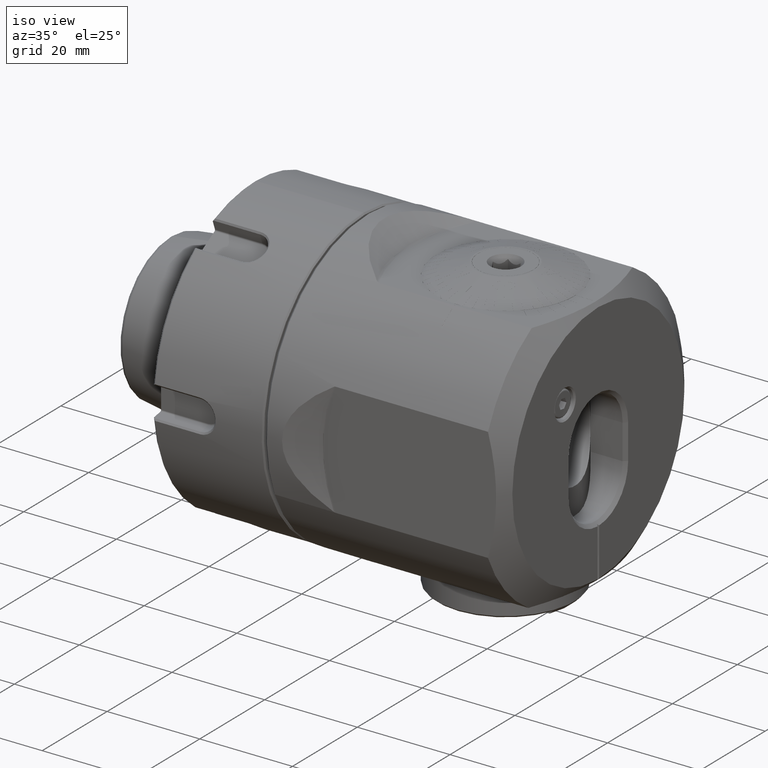
[diagram: clean part render]
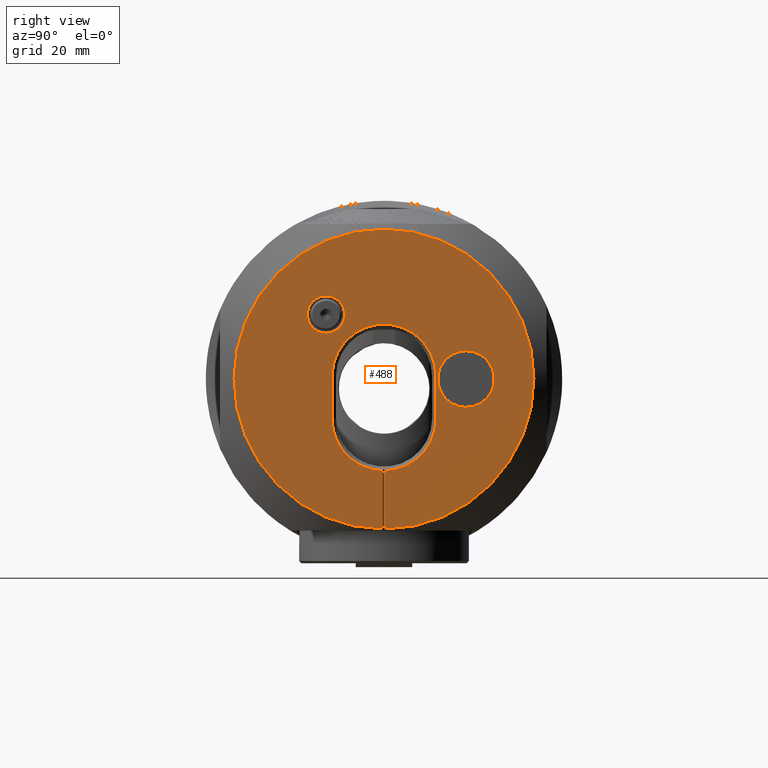
[diagram: tour spotlight — one face highlighted and labeled with its STEP entity id]
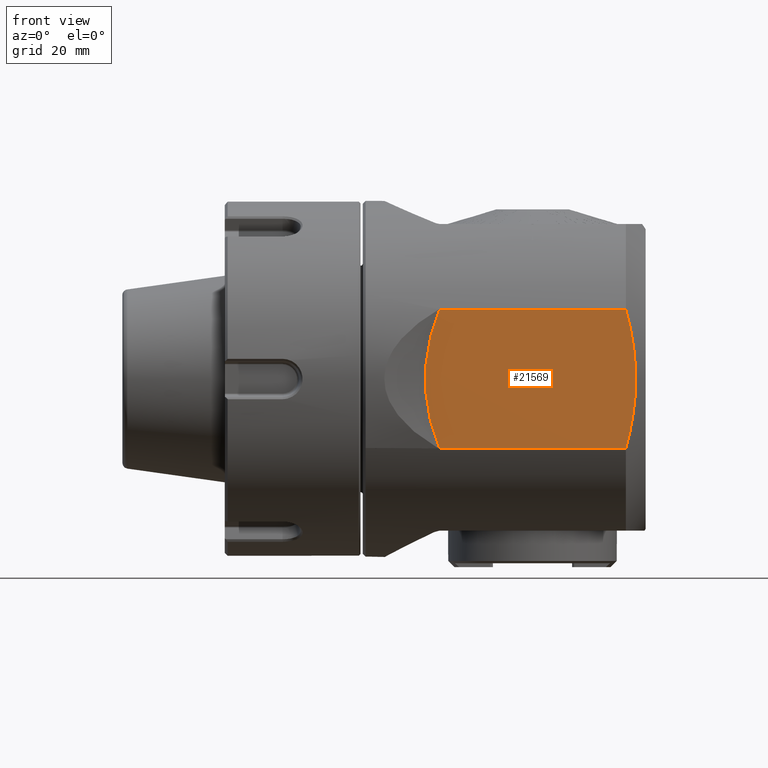
[diagram: tour spotlight — one face highlighted and labeled with its STEP entity id]
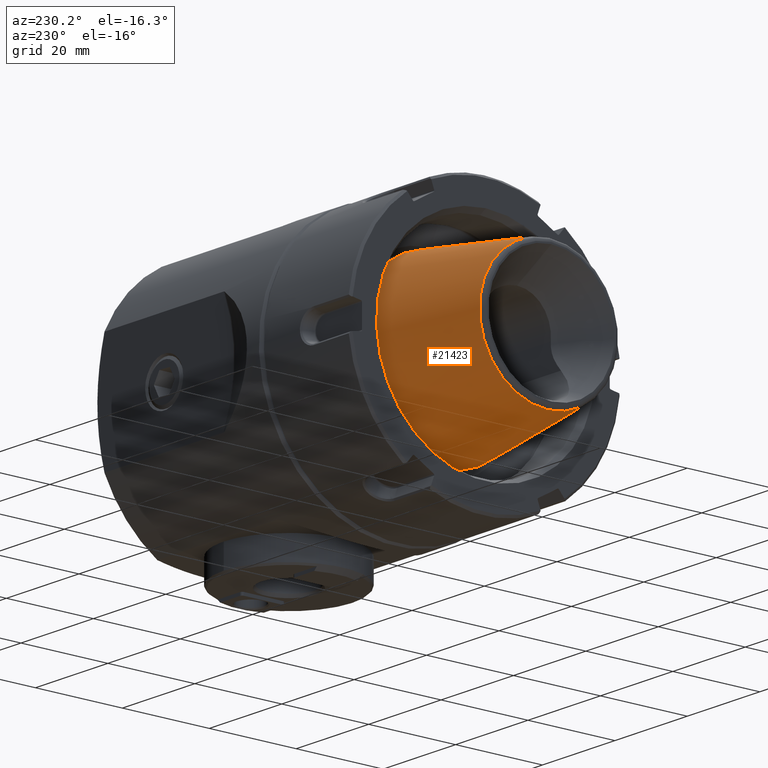
[diagram: tour spotlight — one face highlighted and labeled with its STEP entity id]
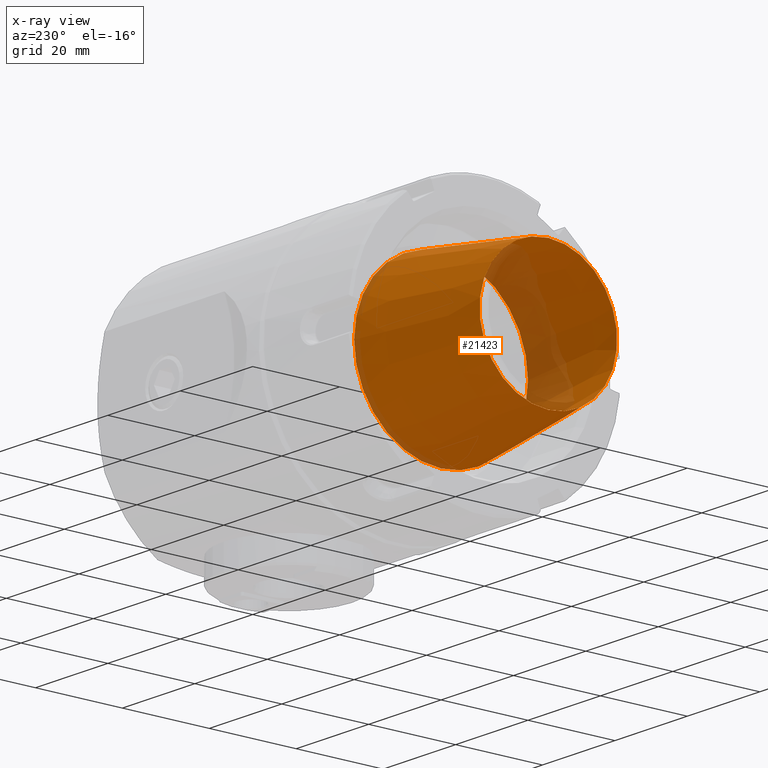
[diagram: x-ray of the same camera — body ghosted, this tour face saturated]
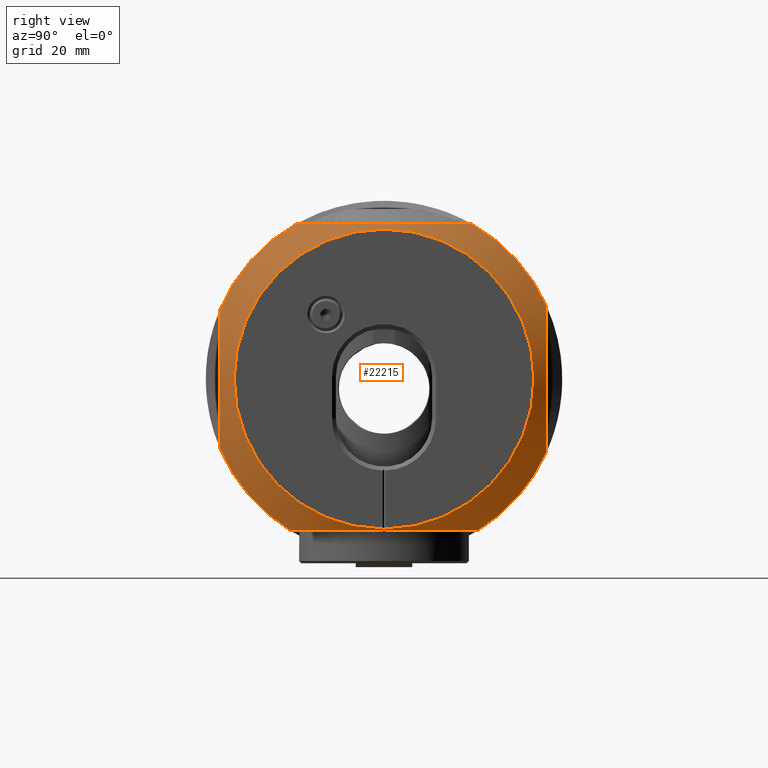
[diagram: tour spotlight — one face highlighted and labeled with its STEP entity id]
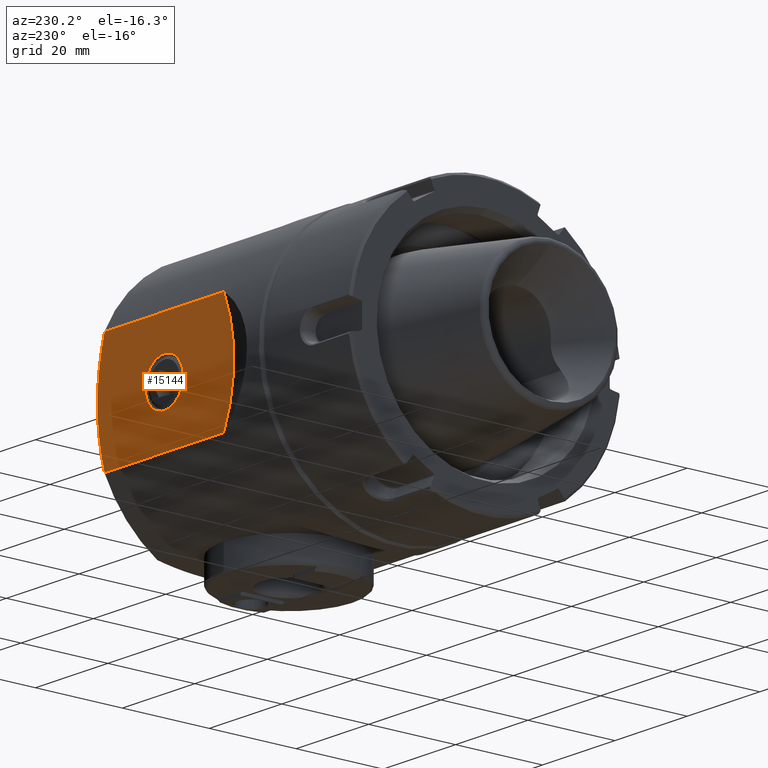
[diagram: tour spotlight — one face highlighted and labeled with its STEP entity id]
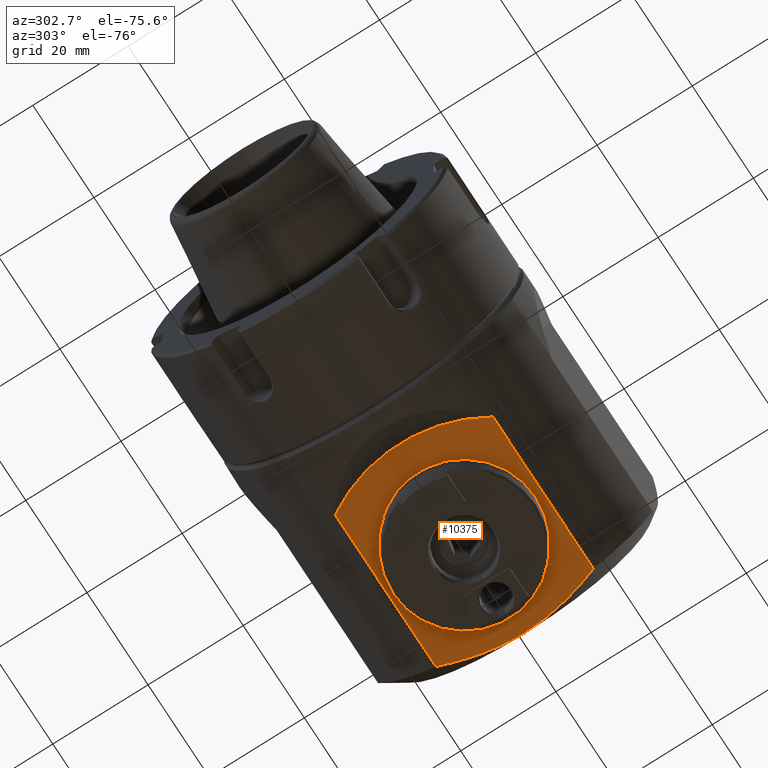
[diagram: tour spotlight — one face highlighted and labeled with its STEP entity id]
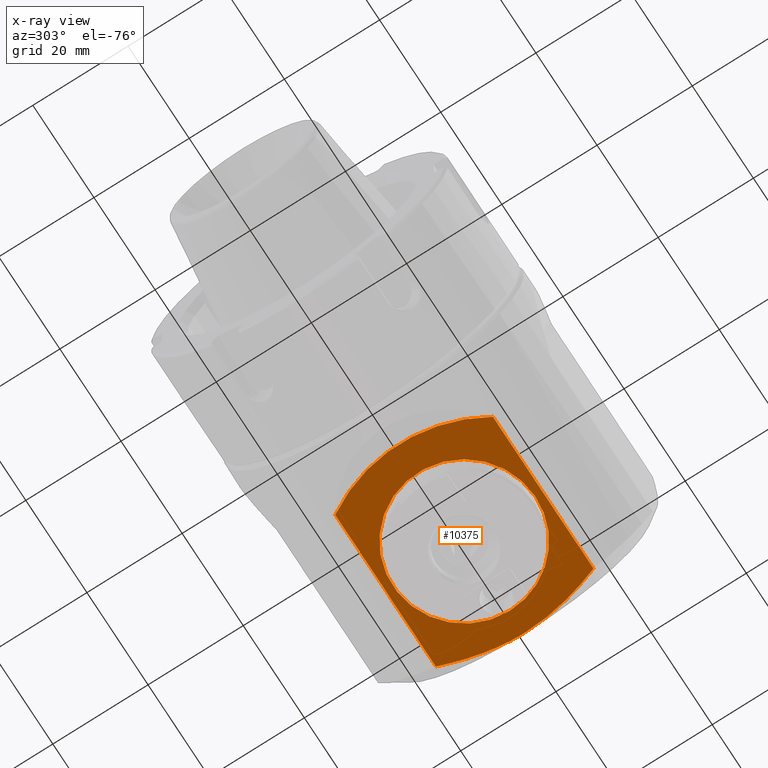
[diagram: x-ray of the same camera — body ghosted, this tour face saturated]
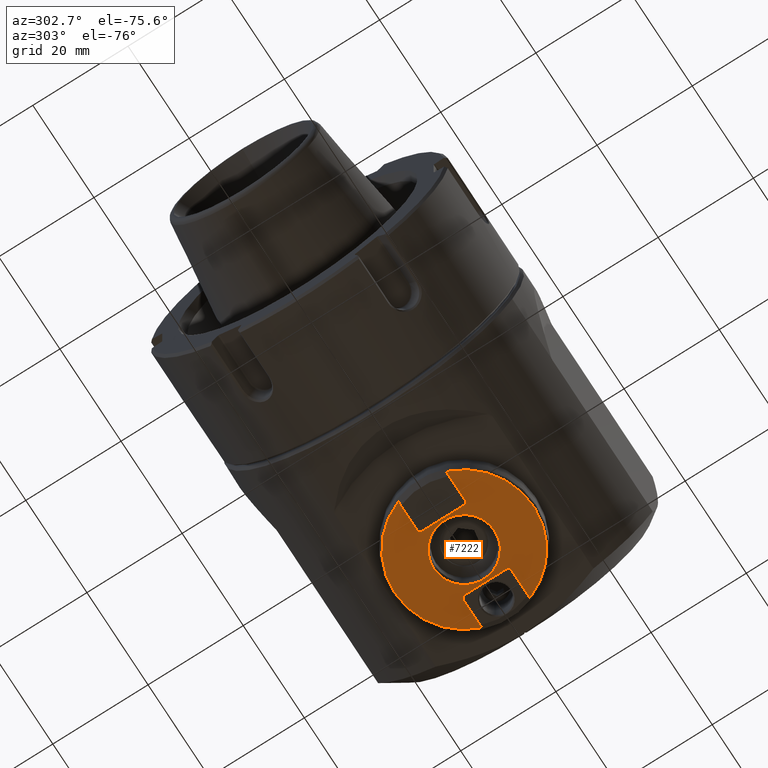
[diagram: tour spotlight — one face highlighted and labeled with its STEP entity id]
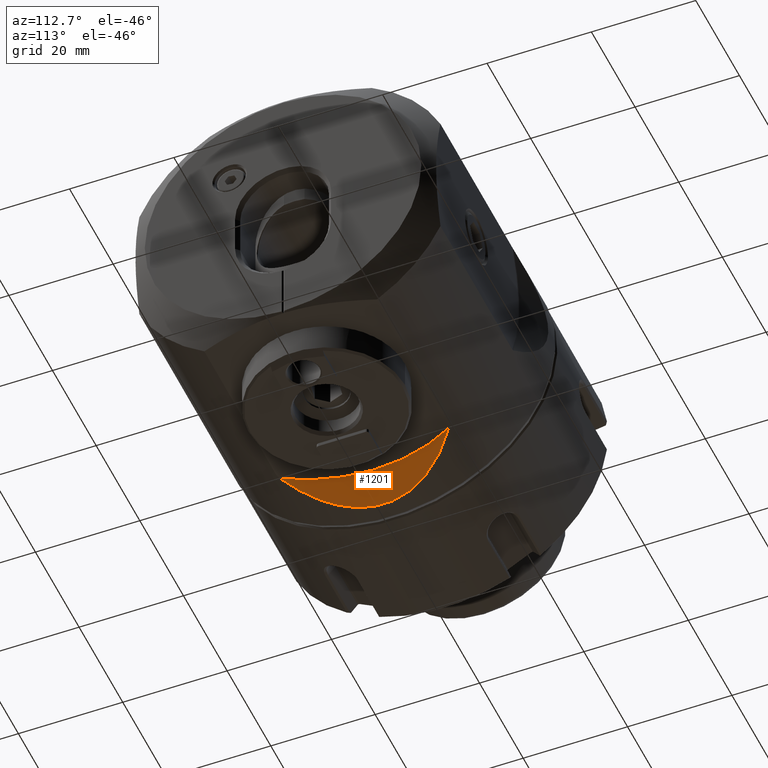
[diagram: tour spotlight — one face highlighted and labeled with its STEP entity id]
A machine part: a face-by-face anatomy tour. The part has 676 B-rep faces; the first image is the clean iso view, then the 8 largest visible faces are spotlighted one at a time (largest first), each with its STEP entity span.

Face 1 — right view, entity #488. In plain terms, the highlighted planar face has unit normal (-1, 0, 0).
Definition (entity closure, byte-faithful):
#4 = DIRECTION ( 'NONE',  ( -0.0000000000000000000, -0.0000000000000000000, 1.000000000000000000 ) ) ;
#76 = VERTEX_POINT ( 'NONE', #14586 ) ;
#488 = ADVANCED_FACE ( 'NONE', ( #9107, #20883, #25321 ), #21532, .F. ) ;
#557 = EDGE_CURVE ( 'NONE', #76, #8740, #21974, .T. ) ;
#1233 = CIRCLE ( 'NONE', #22218, 3.300000000000000700 ) ;
#2196 = EDGE_CURVE ( 'NONE', #24616, #22189, #17845, .T. ) ;
#2520 = CIRCLE ( 'NONE', #27663, 9.199999999999999300 ) ;
#2721 = DIRECTION ( 'NONE',  ( 0.0000000000000000000, -1.000000000000000000, 0.0000000000000000000 ) ) ;
#2848 = ORIENTED_EDGE ( 'NONE', *, *, #14149, .F. ) ;
#2919 = DIRECTION ( 'NONE',  ( 1.000000000000000000, -0.0000000000000000000, -1.236363128384947900E-016 ) ) ;
#3467 = ORIENTED_EDGE ( 'NONE', *, *, #24137, .F. ) ;
#4623 = VERTEX_POINT ( 'NONE', #27102 ) ;
#4821 = VERTEX_POINT ( 'NONE', #24833 ) ;
#5404 = DIRECTION ( 'NONE',  ( 0.0000000000000000000, -1.000000000000000000, 0.0000000000000000000 ) ) ;
#6313 = CARTESIAN_POINT ( 'NONE',  ( 49.99999999999998600, 14.50000000000000000, 0.0000000000000000000 ) ) ;
#6926 = CARTESIAN_POINT ( 'NONE',  ( 49.99999999999998600, 0.2500000000000000000, -16.19660263358159500 ) ) ;
#7645 = AXIS2_PLACEMENT_3D ( 'NONE', #6313, #22775, #11037 ) ;
#7666 = VERTEX_POINT ( 'NONE', #9091 ) ;
#8112 = CARTESIAN_POINT ( 'NONE',  ( 49.99999999999998600, 9.199999999999999300, 0.0000000000000000000 ) ) ;
#8130 = CARTESIAN_POINT ( 'NONE',  ( 49.99999999999998600, -2.312030256765408100E-016, -6.999999999999999100 ) ) ;
#8333 = EDGE_CURVE ( 'NONE', #4821, #22119, #24246, .T. ) ;
#8334 = DIRECTION ( 'NONE',  ( -1.000000000000000000, 4.624060513530817200E-018, -0.0000000000000000000 ) ) ;
#8337 = AXIS2_PLACEMENT_3D ( 'NONE', #30019, #16079, #20685 ) ;
#8740 = VERTEX_POINT ( 'NONE', #16814 ) ;
#9091 = CARTESIAN_POINT ( 'NONE',  ( 49.99999999999998600, 14.50000000000000000, -4.999999999999988500 ) ) ;
#9107 = FACE_BOUND ( 'NONE', #11792, .T. ) ;
#9300 = DIRECTION ( 'NONE',  ( -4.624060513530817200E-018, -1.000000000000000000, 0.0000000000000000000 ) ) ;
#9509 = CARTESIAN_POINT ( 'NONE',  ( 49.99999999999998600, -10.25000000000000000, 8.099999999999992500 ) ) ;
#9567 = LINE ( 'NONE', #27397, #15110 ) ;
#10026 = DIRECTION ( 'NONE',  ( -1.000000000000000000, 4.624060513530817200E-018, -0.0000000000000000000 ) ) ;
#10466 = DIRECTION ( 'NONE',  ( -1.000000000000000000, 4.624060513530817200E-018, -0.0000000000000000000 ) ) ;
#10530 = CIRCLE ( 'NONE', #8337, 26.50148197640261200 ) ;
#10965 = VERTEX_POINT ( 'NONE', #9509 ) ;
#11037 = DIRECTION ( 'NONE',  ( 0.0000000000000000000, 0.0000000000000000000, -1.000000000000000000 ) ) ;
#11743 = CARTESIAN_POINT ( 'NONE',  ( 49.99999999999998600, -0.2500000000000000000, -31.50000000000000000 ) ) ;
#11792 = EDGE_LOOP ( 'NONE', ( #25530 ) ) ;
#12076 = EDGE_LOOP ( 'NONE', ( #2848 ) ) ;
#12669 = DIRECTION ( 'NONE',  ( 0.0000000000000000000, 0.0000000000000000000, -1.000000000000000000 ) ) ;
#12827 = CARTESIAN_POINT ( 'NONE',  ( 49.99999999999998600, -2.312030256765408100E-016, 0.5000000000000000000 ) ) ;
#14149 = EDGE_CURVE ( 'NONE', #7666, #7666, #17404, .T. ) ;
#14353 = CARTESIAN_POINT ( 'NONE',  ( 49.99999999999998600, -2.312030256765408100E-016, -6.999999999999999100 ) ) ;
#14586 = CARTESIAN_POINT ( 'NONE',  ( 49.99999999999998600, -0.2500000000000000000, -26.50030277082872500 ) ) ;
#14878 = CARTESIAN_POINT ( 'NONE',  ( 49.99999999999998600, -10.25000000000000000, 11.39999999999999300 ) ) ;
#15110 = VECTOR ( 'NONE', #18212, 1000.000000000000000 ) ;
#15595 = DIRECTION ( 'NONE',  ( 0.0000000000000000000, -1.000000000000000000, 0.0000000000000000000 ) ) ;
#16079 = DIRECTION ( 'NONE',  ( -1.000000000000000000, 4.624060513530817200E-018, -0.0000000000000000000 ) ) ;
#16385 = VECTOR ( 'NONE', #20841, 1000.000000000000000 ) ;
#16409 = DIRECTION ( 'NONE',  ( -1.000000000000000000, 4.624060513530817200E-018, 0.0000000000000000000 ) ) ;
#16814 = CARTESIAN_POINT ( 'NONE',  ( 49.99999999999998600, -0.2500000000000000000, -16.19660263358159800 ) ) ;
#17404 = CIRCLE ( 'NONE', #7645, 4.999999999999988500 ) ;
#17590 = EDGE_CURVE ( 'NONE', #22119, #24616, #27853, .T. ) ;
#17845 = CIRCLE ( 'NONE', #21067, 9.199999999999997500 ) ;
#17966 = CARTESIAN_POINT ( 'NONE',  ( 49.99999999999998600, 9.199999999999999300, 0.5000000000000000000 ) ) ;
#18212 = DIRECTION ( 'NONE',  ( 1.069528843621237400E-033, 2.312964634635743400E-016, 1.000000000000000000 ) ) ;
#18505 = EDGE_CURVE ( 'NONE', #4623, #22189, #19318, .T. ) ;
#19177 = ORIENTED_EDGE ( 'NONE', *, *, #22618, .T. ) ;
#19274 = ORIENTED_EDGE ( 'NONE', *, *, #557, .T. ) ;
#19318 = LINE ( 'NONE', #23303, #16385 ) ;
#19750 = EDGE_CURVE ( 'NONE', #10965, #10965, #1233, .T. ) ;
#19798 = ORIENTED_EDGE ( 'NONE', *, *, #18505, .F. ) ;
#20685 = DIRECTION ( 'NONE',  ( 0.0000000000000000000, -1.000000000000000000, 0.0000000000000000000 ) ) ;
#20841 = DIRECTION ( 'NONE',  ( -0.0000000000000000000, -0.0000000000000000000, 1.000000000000000000 ) ) ;
#20883 = FACE_OUTER_BOUND ( 'NONE', #28791, .T. ) ;
#21067 = AXIS2_PLACEMENT_3D ( 'NONE', #14353, #10026, #2721 ) ;
#21245 = ORIENTED_EDGE ( 'NONE', *, *, #17590, .T. ) ;
#21532 = PLANE ( 'NONE',  #29299 ) ;
#21974 = LINE ( 'NONE', #11743, #24932 ) ;
#22119 = VERTEX_POINT ( 'NONE', #17966 ) ;
#22189 = VERTEX_POINT ( 'NONE', #6926 ) ;
#22218 = AXIS2_PLACEMENT_3D ( 'NONE', #14878, #2919, #24324 ) ;
#22618 = EDGE_CURVE ( 'NONE', #22910, #4821, #9567, .T. ) ;
#22775 = DIRECTION ( 'NONE',  ( 1.000000000000000000, -0.0000000000000000000, -0.0000000000000000000 ) ) ;
#22910 = VERTEX_POINT ( 'NONE', #26141 ) ;
#23098 = CARTESIAN_POINT ( 'NONE',  ( 49.99999999999998600, 9.199999999999999300, -6.999999999999999100 ) ) ;
#23303 = CARTESIAN_POINT ( 'NONE',  ( 49.99999999999998600, 0.2500000000000000000, -31.50000000000000000 ) ) ;
#24137 = EDGE_CURVE ( 'NONE', #76, #4623, #10530, .T. ) ;
#24246 = CIRCLE ( 'NONE', #30428, 9.199999999999999300 ) ;
#24324 = DIRECTION ( 'NONE',  ( 0.0000000000000000000, 0.0000000000000000000, -1.000000000000000000 ) ) ;
#24616 = VERTEX_POINT ( 'NONE', #23098 ) ;
#24833 = CARTESIAN_POINT ( 'NONE',  ( 49.99999999999998600, -9.199999999999999300, 0.4999999999999990600 ) ) ;
#24932 = VECTOR ( 'NONE', #4, 1000.000000000000000 ) ;
#25321 = FACE_BOUND ( 'NONE', #12076, .T. ) ;
#25530 = ORIENTED_EDGE ( 'NONE', *, *, #19750, .F. ) ;
#26127 = ORIENTED_EDGE ( 'NONE', *, *, #8333, .T. ) ;
#26141 = CARTESIAN_POINT ( 'NONE',  ( 49.99999999999998600, -9.200000000000001100, -7.000000000000000900 ) ) ;
#27102 = CARTESIAN_POINT ( 'NONE',  ( 49.99999999999998600, 0.2500000000000000000, -26.50030277082872500 ) ) ;
#27397 = CARTESIAN_POINT ( 'NONE',  ( 49.99999999999998600, -9.199999999999999300, 8.257626521550464200E-015 ) ) ;
#27663 = AXIS2_PLACEMENT_3D ( 'NONE', #8130, #8334, #15595 ) ;
#27853 = LINE ( 'NONE', #8112, #30030 ) ;
#27858 = ORIENTED_EDGE ( 'NONE', *, *, #2196, .T. ) ;
#28319 = CARTESIAN_POINT ( 'NONE',  ( 49.99999999999998600, 26.50148197640261200, 0.0000000000000000000 ) ) ;
#28791 = EDGE_LOOP ( 'NONE', ( #21245, #27858, #19798, #3467, #19274, #29494, #19177, #26127 ) ) ;
#29299 = AXIS2_PLACEMENT_3D ( 'NONE', #28319, #16409, #9300 ) ;
#29494 = ORIENTED_EDGE ( 'NONE', *, *, #29556, .T. ) ;
#29556 = EDGE_CURVE ( 'NONE', #8740, #22910, #2520, .T. ) ;
#30019 = CARTESIAN_POINT ( 'NONE',  ( 49.99999999999998600, 3.863232095606900700E-016, 0.0000000000000000000 ) ) ;
#30030 = VECTOR ( 'NONE', #12669, 1000.000000000000000 ) ;
#30428 = AXIS2_PLACEMENT_3D ( 'NONE', #12827, #10466, #5404 ) ;

Face 2 — front view, entity #21569. In plain terms, the highlighted planar face has unit normal (0, 1, 0).
Definition (entity closure, byte-faithful):
#622 = CARTESIAN_POINT ( 'NONE',  ( 48.25053775914975800, -28.99999999999999600, -2.065301056447495800 ) ) ;
#1124 = EDGE_CURVE ( 'NONE', #12234, #16806, #4610, .T. ) ;
#1473 = ORIENTED_EDGE ( 'NONE', *, *, #17774, .F. ) ;
#1792 = ORIENTED_EDGE ( 'NONE', *, *, #7123, .F. ) ;
#2426 = VECTOR ( 'NONE', #27571, 1000.000000000000000 ) ;
#2487 = CARTESIAN_POINT ( 'NONE',  ( -39.53214697070333000, -28.99999999999999600, -12.29837387624885300 ) ) ;
#3526 = CARTESIAN_POINT ( 'NONE',  ( 48.09434118236933400, -28.99999999999999300, -4.133721618043947100 ) ) ;
#4049 = AXIS2_PLACEMENT_3D ( 'NONE', #8101, #26973, #10487 ) ;
#4610 = CIRCLE ( 'NONE', #4049, 31.36399206875057600 ) ;
#5199 = FACE_OUTER_BOUND ( 'NONE', #8703, .T. ) ;
#5274 = CARTESIAN_POINT ( 'NONE',  ( 47.64262032588140300, -28.99999999999999300, 7.219598007049781600 ) ) ;
#5529 = VERTEX_POINT ( 'NONE', #11681 ) ;
#5872 = CARTESIAN_POINT ( 'NONE',  ( 47.45242234275316700, -28.99999999999999600, -8.266937171296806500 ) ) ;
#6913 = DIRECTION ( 'NONE',  ( -1.000000000000000000, 4.624060513530817200E-018, -0.0000000000000000000 ) ) ;
#7123 = EDGE_CURVE ( 'NONE', #23074, #5529, #17427, .T. ) ;
#7180 = LINE ( 'NONE', #2487, #28897 ) ;
#7549 = CARTESIAN_POINT ( 'NONE',  ( 47.02061779463297600, -29.00000000000000000, 10.29095785616906300 ) ) ;
#8101 = CARTESIAN_POINT ( 'NONE',  ( 42.43999999999997600, -29.00000000000000000, 0.0000000000000000000 ) ) ;
#8421 = CARTESIAN_POINT ( 'NONE',  ( -39.53214697070333000, -28.99999999999999600, 12.29837387624885300 ) ) ;
#8597 = CARTESIAN_POINT ( 'NONE',  ( 46.49999999999998600, -28.99999999999999600, 12.29837387624885300 ) ) ;
#8703 = EDGE_LOOP ( 'NONE', ( #1792, #1473, #29899, #26812 ) ) ;
#10487 = DIRECTION ( 'NONE',  ( 0.0000000000000000000, 0.0000000000000000000, 1.000000000000000000 ) ) ;
#11174 = CARTESIAN_POINT ( 'NONE',  ( 13.58779040543601400, -29.00000000000000000, 12.29837387624884400 ) ) ;
#11681 = CARTESIAN_POINT ( 'NONE',  ( 46.49999999999998600, -28.99999999999999600, -12.29837387624885300 ) ) ;
#12234 = VERTEX_POINT ( 'NONE', #25932 ) ;
#12290 = CARTESIAN_POINT ( 'NONE',  ( 48.25049992842602400, -28.99999999999999300, 2.066059551508147200 ) ) ;
#15701 = DIRECTION ( 'NONE',  ( -0.0000000000000000000, 1.000000000000000000, 0.0000000000000000000 ) ) ;
#16567 = AXIS2_PLACEMENT_3D ( 'NONE', #20293, #15701, #29642 ) ;
#16806 = VERTEX_POINT ( 'NONE', #11174 ) ;
#17427 = B_SPLINE_CURVE_WITH_KNOTS ( 'NONE', 3,
 ( #28739, #21643, #7549, #28837, #5274, #24434, #12290, #622, #3526, #19891, #5872, #19993, #29436, #24525 ),
 .UNSPECIFIED., .F., .F.,
 ( 4, 2, 2, 2, 2, 2, 4 ),
 ( 0.01806635137202860400, 0.02116295078755955900, 0.02425955020309051400, 0.03045274903415243200, 0.03664594786521435000, 0.03974254728074530500, 0.04283914669627626700 ),
 .UNSPECIFIED. ) ;
#17774 = EDGE_CURVE ( 'NONE', #16806, #23074, #24522, .T. ) ;
#19891 = CARTESIAN_POINT ( 'NONE',  ( 47.63924455456774600, -28.99999999999999600, -7.240225659594227800 ) ) ;
#19993 = CARTESIAN_POINT ( 'NONE',  ( 47.01906962752441600, -28.99999999999999600, -10.29717574520544500 ) ) ;
#20293 = CARTESIAN_POINT ( 'NONE',  ( 42.43999999999997600, -28.99999999999999600, 0.0000000000000000000 ) ) ;
#21569 = ADVANCED_FACE ( 'NONE', ( #5199 ), #29537, .F. ) ;
#21643 = CARTESIAN_POINT ( 'NONE',  ( 46.77311714873911800, -28.99999999999999600, 11.29932887742480200 ) ) ;
#23074 = VERTEX_POINT ( 'NONE', #8597 ) ;
#24434 = CARTESIAN_POINT ( 'NONE',  ( 48.09431713834967300, -28.99999999999999600, 4.129000503315623400 ) ) ;
#24522 = LINE ( 'NONE', #8421, #2426 ) ;
#24525 = CARTESIAN_POINT ( 'NONE',  ( 46.49999999999998600, -28.99999999999999600, -12.29837387624885300 ) ) ;
#25932 = CARTESIAN_POINT ( 'NONE',  ( 13.58779040543601400, -29.00000000000000000, -12.29837387624884400 ) ) ;
#26420 = EDGE_CURVE ( 'NONE', #5529, #12234, #7180, .T. ) ;
#26812 = ORIENTED_EDGE ( 'NONE', *, *, #26420, .F. ) ;
#26973 = DIRECTION ( 'NONE',  ( -0.0000000000000000000, 1.000000000000000000, -0.0000000000000000000 ) ) ;
#27571 = DIRECTION ( 'NONE',  ( 1.000000000000000000, -4.624060513530817200E-018, 0.0000000000000000000 ) ) ;
#28739 = CARTESIAN_POINT ( 'NONE',  ( 46.49999999999998600, -28.99999999999999600, 12.29837387624885300 ) ) ;
#28837 = CARTESIAN_POINT ( 'NONE',  ( 47.45533045010411400, -29.00000000000000000, 8.252266948191440600 ) ) ;
#28897 = VECTOR ( 'NONE', #6913, 1000.000000000000000 ) ;
#29436 = CARTESIAN_POINT ( 'NONE',  ( 46.77235463610864500, -28.99999999999999600, -11.30211809968172800 ) ) ;
#29537 = PLANE ( 'NONE',  #16567 ) ;
#29642 = DIRECTION ( 'NONE',  ( 0.0000000000000000000, 0.0000000000000000000, 1.000000000000000000 ) ) ;
#29899 = ORIENTED_EDGE ( 'NONE', *, *, #1124, .F. ) ;

Face 3 — auxiliary view, entity #21423. An x-ray twin of the same camera follows (body ghosted, this face saturated) — the face is partly hidden behind the body. In plain terms, the highlighted conical surface has half-angle 8 deg.
Definition (entity closure, byte-faithful):
#408 = AXIS2_PLACEMENT_3D ( 'NONE', #14570, #2508, #27819 ) ;
#733 = DIRECTION ( 'NONE',  ( 1.000000000000000000, 0.0000000000000000000, 0.0000000000000000000 ) ) ;
#1302 = ORIENTED_EDGE ( 'NONE', *, *, #2188, .T. ) ;
#1515 = FACE_OUTER_BOUND ( 'NONE', #5573, .T. ) ;
#1730 = AXIS2_PLACEMENT_3D ( 'NONE', #26599, #733, #19894 ) ;
#2188 = EDGE_CURVE ( 'NONE', #17669, #17669, #11916, .T. ) ;
#2508 = DIRECTION ( 'NONE',  ( -1.000000000000000000, -0.0000000000000000000, -0.0000000000000000000 ) ) ;
#5158 = DIRECTION ( 'NONE',  ( -1.000000000000000000, -0.0000000000000000000, -0.0000000000000000000 ) ) ;
#5573 = EDGE_LOOP ( 'NONE', ( #1302 ) ) ;
#7730 = CARTESIAN_POINT ( 'NONE',  ( -41.63917310096007900, 0.0000000000000000000, 15.83448587250238900 ) ) ;
#11151 = ORIENTED_EDGE ( 'NONE', *, *, #29288, .F. ) ;
#11916 = CIRCLE ( 'NONE', #15183, 20.00000000000000400 ) ;
#13315 = FACE_BOUND ( 'NONE', #18283, .T. ) ;
#14570 = CARTESIAN_POINT ( 'NONE',  ( -41.63917310096007900, 0.0000000000000000000, 0.0000000000000000000 ) ) ;
#15183 = AXIS2_PLACEMENT_3D ( 'NONE', #19372, #5158, #26286 ) ;
#17230 = VERTEX_POINT ( 'NONE', #7730 ) ;
#17669 = VERTEX_POINT ( 'NONE', #20617 ) ;
#18283 = EDGE_LOOP ( 'NONE', ( #11151 ) ) ;
#19372 = CARTESIAN_POINT ( 'NONE',  ( -12.00000000000001800, 0.0000000000000000000, 0.0000000000000000000 ) ) ;
#19894 = DIRECTION ( 'NONE',  ( 0.0000000000000000000, 0.0000000000000000000, -1.000000000000000000 ) ) ;
#20617 = CARTESIAN_POINT ( 'NONE',  ( -12.00000000000001800, 0.0000000000000000000, 20.00000000000000400 ) ) ;
#21423 = ADVANCED_FACE ( 'NONE', ( #13315, #1515 ), #25844, .T. ) ;
#24598 = CIRCLE ( 'NONE', #408, 15.83448587250238900 ) ;
#25844 = CONICAL_SURFACE ( 'NONE', #1730, 20.00000000000000400, 0.1396263401595470300 ) ;
#26286 = DIRECTION ( 'NONE',  ( 0.0000000000000000000, 0.0000000000000000000, 1.000000000000000000 ) ) ;
#26599 = CARTESIAN_POINT ( 'NONE',  ( -12.00000000000001800, 0.0000000000000000000, 0.0000000000000000000 ) ) ;
#27819 = DIRECTION ( 'NONE',  ( 0.0000000000000000000, 0.0000000000000000000, 1.000000000000000000 ) ) ;
#29288 = EDGE_CURVE ( 'NONE', #17230, #17230, #24598, .T. ) ;

Face 4 — right view, entity #22215. In plain terms, the highlighted conical surface has half-angle 55 deg.
Definition (entity closure, byte-faithful):
#76 = VERTEX_POINT ( 'NONE', #14586 ) ;
#87 = CARTESIAN_POINT ( 'NONE',  ( 47.47172920740938200, -13.91238471843347700, -26.80000000000001800 ) ) ;
#622 = CARTESIAN_POINT ( 'NONE',  ( 48.25053775914975800, -28.99999999999999600, -2.065301056447495800 ) ) ;
#840 = CARTESIAN_POINT ( 'NONE',  ( 49.93041645724333200, 0.1804164572433395200, -26.60033923173221400 ) ) ;
#914 = CARTESIAN_POINT ( 'NONE',  ( 48.41673818849593400, 28.69999999999999200, -2.186002032536237900 ) ) ;
#922 = CIRCLE ( 'NONE', #18451, 31.50000000000000000 ) ;
#1364 = ORIENTED_EDGE ( 'NONE', *, *, #18691, .T. ) ;
#1420 = VERTEX_POINT ( 'NONE', #18646 ) ;
#1718 = CARTESIAN_POINT ( 'NONE',  ( 48.08257959064457800, 10.50876400711528700, 27.39999999999999500 ) ) ;
#2577 = CARTESIAN_POINT ( 'NONE',  ( 49.76989998276057700, -1.454281984203874800, -26.80000000000002200 ) ) ;
#3151 = CARTESIAN_POINT ( 'NONE',  ( 49.79095351949370500, 0.04095351949371416700, -26.80000000000001800 ) ) ;
#3391 = CARTESIAN_POINT ( 'NONE',  ( 49.09763762296349700, -5.267894672878190600, 27.40000000000000200 ) ) ;
#3410 = CARTESIAN_POINT ( 'NONE',  ( 48.24285471767629500, 28.70000000000000300, -4.373281368968598300 ) ) ;
#3526 = CARTESIAN_POINT ( 'NONE',  ( 48.09434118236933400, -28.99999999999999300, -4.133721618043947100 ) ) ;
#3681 = VERTEX_POINT ( 'NONE', #10820 ) ;
#3755 = B_SPLINE_CURVE_WITH_KNOTS ( 'NONE', 3,
 ( #10299, #21922, #10106, #15058, #3410, #914, #17614, #10200, #19970, #10405, #19871, #5850, #8116, #26673 ),
 .UNSPECIFIED., .F., .F.,
 ( 4, 2, 2, 2, 2, 2, 4 ),
 ( 0.01517941882747315100, 0.02172184313844791000, 0.02499305529393528600, 0.02826426744942266100, 0.03480669176039741200, 0.03807790391588478800, 0.04134911607137216300 ),
 .UNSPECIFIED. ) ;
#4123 = EDGE_CURVE ( 'NONE', #3681, #17998, #25676, .T. ) ;
#4623 = VERTEX_POINT ( 'NONE', #27102 ) ;
#4751 = ORIENTED_EDGE ( 'NONE', *, *, #11246, .F. ) ;
#4760 = ORIENTED_EDGE ( 'NONE', *, *, #7400, .T. ) ;
#4923 = CARTESIAN_POINT ( 'NONE',  ( 49.68987535739493900, -2.874136586922572800, -26.80000000000002600 ) ) ;
#4984 = AXIS2_PLACEMENT_3D ( 'NONE', #28123, #30250, #28020 ) ;
#5054 = ORIENTED_EDGE ( 'NONE', *, *, #20689, .T. ) ;
#5097 = VERTEX_POINT ( 'NONE', #29207 ) ;
#5120 = VERTEX_POINT ( 'NONE', #3151 ) ;
#5182 = DIRECTION ( 'NONE',  ( -1.000000000000000000, 4.624060513530817200E-018, -0.0000000000000000000 ) ) ;
#5274 = CARTESIAN_POINT ( 'NONE',  ( 47.64262032588140300, -28.99999999999999300, 7.219598007049781600 ) ) ;
#5529 = VERTEX_POINT ( 'NONE', #11681 ) ;
#5831 = CARTESIAN_POINT ( 'NONE',  ( 48.34628547447778900, -9.158609920693685100, 27.39999999999999900 ) ) ;
#5850 = CARTESIAN_POINT ( 'NONE',  ( 47.07911996540498500, 28.70000000000000300, 10.87061217749874100 ) ) ;
#5872 = CARTESIAN_POINT ( 'NONE',  ( 47.45242234275316700, -28.99999999999999600, -8.266937171296806500 ) ) ;
#5886 = EDGE_CURVE ( 'NONE', #3681, #5529, #7805, .T. ) ;
#6003 = DIRECTION ( 'NONE',  ( 0.0000000000000000000, -1.000000000000000000, 0.0000000000000000000 ) ) ;
#6088 = VERTEX_POINT ( 'NONE', #29857 ) ;
#6496 = ORIENTED_EDGE ( 'NONE', *, *, #25958, .F. ) ;
#6562 = CARTESIAN_POINT ( 'NONE',  ( 46.49999999999998600, -15.53994851986326400, 27.39999999999999500 ) ) ;
#6604 = CARTESIAN_POINT ( 'NONE',  ( 48.23322520594589900, 11.16252247691669400, -26.80000000000002200 ) ) ;
#6625 = CONICAL_SURFACE ( 'NONE', #4984, 26.50148197640261200, 0.9599310885968797000 ) ;
#6915 = CARTESIAN_POINT ( 'NONE',  ( 47.43682012152402200, 13.89375990555982000, -26.80000000000001800 ) ) ;
#7123 = EDGE_CURVE ( 'NONE', #23074, #5529, #17427, .T. ) ;
#7400 = EDGE_CURVE ( 'NONE', #5120, #1420, #12480, .T. ) ;
#7409 = CARTESIAN_POINT ( 'NONE',  ( 49.62984455664817300, -3.588099853970304000, -26.80000000000002200 ) ) ;
#7549 = CARTESIAN_POINT ( 'NONE',  ( 47.02061779463297600, -29.00000000000000000, 10.29095785616906300 ) ) ;
#7805 = CIRCLE ( 'NONE', #15445, 31.50000000000000000 ) ;
#7873 = FACE_OUTER_BOUND ( 'NONE', #15047, .T. ) ;
#8053 = DIRECTION ( 'NONE',  ( -1.000000000000000000, 4.624060513530817200E-018, -0.0000000000000000000 ) ) ;
#8116 = CARTESIAN_POINT ( 'NONE',  ( 46.80337970197740600, 28.70000000000000600, 11.93184730736774800 ) ) ;
#8208 = ORIENTED_EDGE ( 'NONE', *, *, #13359, .T. ) ;
#8266 = CARTESIAN_POINT ( 'NONE',  ( 49.93041645724333200, -0.1804164572433390500, -26.60033923173221400 ) ) ;
#8337 = AXIS2_PLACEMENT_3D ( 'NONE', #30019, #16079, #20685 ) ;
#8597 = CARTESIAN_POINT ( 'NONE',  ( 46.49999999999998600, -28.99999999999999600, 12.29837387624885300 ) ) ;
#8681 = DIRECTION ( 'NONE',  ( 0.0000000000000000000, -1.000000000000000000, 0.0000000000000000000 ) ) ;
#9293 = CARTESIAN_POINT ( 'NONE',  ( 48.58323879575168300, 9.789512630566747500, -26.80000000000001500 ) ) ;
#10106 = CARTESIAN_POINT ( 'NONE',  ( 47.60047705119905700, 28.70000000000000300, -8.750116990281801700 ) ) ;
#10200 = CARTESIAN_POINT ( 'NONE',  ( 48.46062016139345700, 28.69999999999999200, 2.183859167442979900 ) ) ;
#10299 = CARTESIAN_POINT ( 'NONE',  ( 46.49999999999998600, 28.69999999999999900, -12.98306589369398800 ) ) ;
#10405 = CARTESIAN_POINT ( 'NONE',  ( 47.77498928722823000, 28.70000000000000600, 7.634739229550834900 ) ) ;
#10480 = CARTESIAN_POINT ( 'NONE',  ( 47.33012698688201400, -13.02318022510853100, 27.39999999999999900 ) ) ;
#10530 = CIRCLE ( 'NONE', #8337, 26.50148197640261200 ) ;
#10704 = B_SPLINE_CURVE_WITH_KNOTS ( 'NONE', 3,
 ( #20664, #26967, #1718, #13472, #25413, #19953, #24582, #17593, #3391, #5831, #29303, #10480, #15255, #6562 ),
 .UNSPECIFIED., .F., .F.,
 ( 4, 2, 2, 2, 2, 2, 4 ),
 ( 0.08513234830357235800, 0.09303387970236179400, 0.09698464540175651100, 0.1009354111011512300, 0.1088369424999406600, 0.1127877081993353800, 0.1167384738987301000 ),
 .UNSPECIFIED. ) ;
#10820 = CARTESIAN_POINT ( 'NONE',  ( 46.49999999999998600, -16.55324741553751300, -26.80000000000001500 ) ) ;
#11043 = ORIENTED_EDGE ( 'NONE', *, *, #24137, .T. ) ;
#11246 = EDGE_CURVE ( 'NONE', #21113, #21072, #16420, .T. ) ;
#11681 = CARTESIAN_POINT ( 'NONE',  ( 46.49999999999998600, -28.99999999999999600, -12.29837387624885300 ) ) ;
#11937 = CARTESIAN_POINT ( 'NONE',  ( 48.29344263081591000, -11.22901214945720100, -26.80000000000001100 ) ) ;
#12290 = CARTESIAN_POINT ( 'NONE',  ( 48.25049992842602400, -28.99999999999999300, 2.066059551508147200 ) ) ;
#12480 = B_SPLINE_CURVE_WITH_KNOTS ( 'NONE', 3,
 ( #18653, #28208, #13824, #14132, #9293, #6604, #20810, #6915, #25765, #28110 ),
 .UNSPECIFIED., .F., .F.,
 ( 4, 2, 2, 2, 4 ),
 ( 0.06050216149302344000, 0.06896504747472552400, 0.07108076897015105900, 0.07319649046557658000, 0.07742793345642762200 ),
 .UNSPECIFIED. ) ;
#13261 = ORIENTED_EDGE ( 'NONE', *, *, #4123, .T. ) ;
#13359 = EDGE_CURVE ( 'NONE', #6088, #21072, #3755, .T. ) ;
#13446 = CARTESIAN_POINT ( 'NONE',  ( 46.49999999999998600, 28.69999999999999900, 12.98306589369398800 ) ) ;
#13472 = CARTESIAN_POINT ( 'NONE',  ( 48.83929463088401900, 6.613143157653873100, 27.40000000000000200 ) ) ;
#13824 = CARTESIAN_POINT ( 'NONE',  ( 49.46699634783858100, 5.652081070289789900, -26.80000000000002200 ) ) ;
#13955 = AXIS2_PLACEMENT_3D ( 'NONE', #20338, #22604, #8681 ) ;
#14123 = ORIENTED_EDGE ( 'NONE', *, *, #15765, .T. ) ;
#14132 = CARTESIAN_POINT ( 'NONE',  ( 48.74372907076492100, 9.101401211490134800, -26.80000000000001500 ) ) ;
#14533 = CARTESIAN_POINT ( 'NONE',  ( 49.16504772222055700, -7.101666874198861600, -26.80000000000001800 ) ) ;
#14586 = CARTESIAN_POINT ( 'NONE',  ( 49.99999999999998600, -0.2500000000000000000, -26.50030277082872500 ) ) ;
#15047 = EDGE_LOOP ( 'NONE', ( #29882, #8208, #4751, #5054, #6496, #17304, #23242, #13261, #14123, #11043, #1364, #4760 ) ) ;
#15058 = CARTESIAN_POINT ( 'NONE',  ( 48.11264903071628400, 28.69999999999999600, -5.468628467289616600 ) ) ;
#15255 = CARTESIAN_POINT ( 'NONE',  ( 46.93203262108677600, -14.28925547125266100, 27.39999999999999500 ) ) ;
#15445 = AXIS2_PLACEMENT_3D ( 'NONE', #20111, #20209, #6003 ) ;
#15765 = EDGE_CURVE ( 'NONE', #17998, #76, #20116, .T. ) ;
#16079 = DIRECTION ( 'NONE',  ( -1.000000000000000000, 4.624060513530817200E-018, -0.0000000000000000000 ) ) ;
#16420 = CIRCLE ( 'NONE', #19416, 31.50000000000000000 ) ;
#16707 = CARTESIAN_POINT ( 'NONE',  ( 49.39488118540286600, -5.708684153461214300, -26.80000000000001800 ) ) ;
#16764 = DIRECTION ( 'NONE',  ( 0.0000000000000000000, -1.000000000000000000, 0.0000000000000000000 ) ) ;
#16896 = CARTESIAN_POINT ( 'NONE',  ( 46.49999999999998600, -16.55324741553751300, -26.80000000000001500 ) ) ;
#17142 = CARTESIAN_POINT ( 'NONE',  ( 49.79095351949370500, 0.04095351949371416700, -26.80000000000001800 ) ) ;
#17304 = ORIENTED_EDGE ( 'NONE', *, *, #7123, .T. ) ;
#17427 = B_SPLINE_CURVE_WITH_KNOTS ( 'NONE', 3,
 ( #28739, #21643, #7549, #28837, #5274, #24434, #12290, #622, #3526, #19891, #5872, #19993, #29436, #24525 ),
 .UNSPECIFIED., .F., .F.,
 ( 4, 2, 2, 2, 2, 2, 4 ),
 ( 0.01806635137202860400, 0.02116295078755955900, 0.02425955020309051400, 0.03045274903415243200, 0.03664594786521435000, 0.03974254728074530500, 0.04283914669627626700 ),
 .UNSPECIFIED. ) ;
#17434 = CIRCLE ( 'NONE', #13955, 31.50000000000000000 ) ;
#17556 = CARTESIAN_POINT ( 'NONE',  ( 49.79095351949370500, -0.04095351949371245400, -26.80000000000001800 ) ) ;
#17593 = CARTESIAN_POINT ( 'NONE',  ( 49.37001185541039700, -2.652797125377828600, 27.39999999999999900 ) ) ;
#17614 = CARTESIAN_POINT ( 'NONE',  ( 48.46056156995611300, 28.70000000000001000, -1.093028890536819300 ) ) ;
#17998 = VERTEX_POINT ( 'NONE', #30508 ) ;
#18269 = CARTESIAN_POINT ( 'NONE',  ( 46.49999999999998600, 15.53994851986326400, 27.39999999999999500 ) ) ;
#18451 = AXIS2_PLACEMENT_3D ( 'NONE', #19098, #5182, #16764 ) ;
#18646 = CARTESIAN_POINT ( 'NONE',  ( 46.49999999999998600, 16.55324741553751300, -26.80000000000001500 ) ) ;
#18653 = CARTESIAN_POINT ( 'NONE',  ( 49.79095351949370500, 0.04095351949371416700, -26.80000000000001800 ) ) ;
#18691 = EDGE_CURVE ( 'NONE', #4623, #5120, #19572, .T. ) ;
#19098 = CARTESIAN_POINT ( 'NONE',  ( 46.49999999999998600, 4.025074213580479900E-016, 0.0000000000000000000 ) ) ;
#19416 = AXIS2_PLACEMENT_3D ( 'NONE', #24635, #8053, #19907 ) ;
#19572 = B_SPLINE_CURVE_WITH_KNOTS ( 'NONE', 3,
 ( #21748, #840, #19595, #17142 ),
 .UNSPECIFIED., .F., .F.,
 ( 4, 4 ),
 ( 4.033275366891953000E-007, 0.0004213775443208668200 ),
 .UNSPECIFIED. ) ;
#19595 = CARTESIAN_POINT ( 'NONE',  ( 49.86073333539840700, 0.1107333353984147100, -26.70023734696872000 ) ) ;
#19871 = CARTESIAN_POINT ( 'NONE',  ( 47.56465955594634900, 28.70000000000000600, 8.724244896167991900 ) ) ;
#19891 = CARTESIAN_POINT ( 'NONE',  ( 47.63924455456774600, -28.99999999999999600, -7.240225659594227800 ) ) ;
#19907 = DIRECTION ( 'NONE',  ( 0.0000000000000000000, -1.000000000000000000, 0.0000000000000000000 ) ) ;
#19953 = CARTESIAN_POINT ( 'NONE',  ( 49.30448156236177900, 2.634694387397993300, 27.39999999999999900 ) ) ;
#19970 = CARTESIAN_POINT ( 'NONE',  ( 48.28392989196965600, 28.70000000000000600, 4.365719313034872200 ) ) ;
#19993 = CARTESIAN_POINT ( 'NONE',  ( 47.01906962752441600, -28.99999999999999600, -10.29717574520544500 ) ) ;
#20111 = CARTESIAN_POINT ( 'NONE',  ( 46.49999999999998600, 4.025074213580479900E-016, 0.0000000000000000000 ) ) ;
#20116 = B_SPLINE_CURVE_WITH_KNOTS ( 'NONE', 3,
 ( #17556, #29454, #8266, #24639 ),
 .UNSPECIFIED., .F., .F.,
 ( 4, 4 ),
 ( 2.813171610181968100E-007, 0.0004212555339451977800 ),
 .UNSPECIFIED. ) ;
#20209 = DIRECTION ( 'NONE',  ( -1.000000000000000000, 4.624060513530817200E-018, -0.0000000000000000000 ) ) ;
#20338 = CARTESIAN_POINT ( 'NONE',  ( 46.49999999999998600, 4.025074213580479900E-016, 0.0000000000000000000 ) ) ;
#20664 = CARTESIAN_POINT ( 'NONE',  ( 46.49999999999998600, 15.53994851986326400, 27.39999999999999500 ) ) ;
#20685 = DIRECTION ( 'NONE',  ( 0.0000000000000000000, -1.000000000000000000, 0.0000000000000000000 ) ) ;
#20689 = EDGE_CURVE ( 'NONE', #21113, #5097, #10704, .T. ) ;
#20810 = CARTESIAN_POINT ( 'NONE',  ( 48.04332419966585400, 11.84868633177944700, -26.80000000000001800 ) ) ;
#21072 = VERTEX_POINT ( 'NONE', #13446 ) ;
#21113 = VERTEX_POINT ( 'NONE', #18269 ) ;
#21412 = CARTESIAN_POINT ( 'NONE',  ( 49.79019854773071100, -0.7465363389953935100, -26.80000000000001100 ) ) ;
#21603 = CARTESIAN_POINT ( 'NONE',  ( 49.79095351949370500, -0.04095351949371245400, -26.80000000000001800 ) ) ;
#21643 = CARTESIAN_POINT ( 'NONE',  ( 46.77311714873911800, -28.99999999999999600, 11.29932887742480200 ) ) ;
#21748 = CARTESIAN_POINT ( 'NONE',  ( 49.99999999999998600, 0.2500000000000000000, -26.50030277082872500 ) ) ;
#21922 = CARTESIAN_POINT ( 'NONE',  ( 47.10538450424581200, 28.70000000000000300, -10.88539278442159900 ) ) ;
#22215 = ADVANCED_FACE ( 'NONE', ( #7873 ), #6625, .T. ) ;
#22604 = DIRECTION ( 'NONE',  ( -1.000000000000000000, 4.624060513530817200E-018, -0.0000000000000000000 ) ) ;
#23074 = VERTEX_POINT ( 'NONE', #8597 ) ;
#23242 = ORIENTED_EDGE ( 'NONE', *, *, #5886, .F. ) ;
#24137 = EDGE_CURVE ( 'NONE', #76, #4623, #10530, .T. ) ;
#24434 = CARTESIAN_POINT ( 'NONE',  ( 48.09431713834967300, -28.99999999999999600, 4.129000503315623400 ) ) ;
#24525 = CARTESIAN_POINT ( 'NONE',  ( 46.49999999999998600, -28.99999999999999600, -12.29837387624885300 ) ) ;
#24582 = CARTESIAN_POINT ( 'NONE',  ( 49.37126748251986200, 1.307789855052229800, 27.39999999999999900 ) ) ;
#24635 = CARTESIAN_POINT ( 'NONE',  ( 46.49999999999998600, 4.025074213580479900E-016, 0.0000000000000000000 ) ) ;
#24639 = CARTESIAN_POINT ( 'NONE',  ( 49.99999999999998600, -0.2500000000000000000, -26.50030277082872500 ) ) ;
#25413 = CARTESIAN_POINT ( 'NONE',  ( 49.03715947582551800, 5.299154470159402700, 27.40000000000000200 ) ) ;
#25676 = B_SPLINE_CURVE_WITH_KNOTS ( 'NONE', 3,
 ( #16896, #87, #11937, #14533, #16707, #7409, #4923, #2577, #21412, #21603 ),
 .UNSPECIFIED., .F., .F.,
 ( 4, 2, 2, 2, 4 ),
 ( 0.04350350183475097700, 0.05196191480359772800, 0.05619112128802111100, 0.05830572453023280500, 0.06042032777244449300 ),
 .UNSPECIFIED. ) ;
#25765 = CARTESIAN_POINT ( 'NONE',  ( 46.98591050177413600, 15.23269133007465500, -26.80000000000000800 ) ) ;
#25958 = EDGE_CURVE ( 'NONE', #23074, #5097, #922, .T. ) ;
#26673 = CARTESIAN_POINT ( 'NONE',  ( 46.49999999999998600, 28.69999999999999900, 12.98306589369398800 ) ) ;
#26967 = CARTESIAN_POINT ( 'NONE',  ( 47.36202985435721000, 13.04445467537699000, 27.39999999999998800 ) ) ;
#27102 = CARTESIAN_POINT ( 'NONE',  ( 49.99999999999998600, 0.2500000000000000000, -26.50030277082872500 ) ) ;
#27152 = EDGE_CURVE ( 'NONE', #6088, #1420, #17434, .T. ) ;
#28020 = DIRECTION ( 'NONE',  ( 0.0000000000000000000, -1.000000000000000000, 0.0000000000000000000 ) ) ;
#28110 = CARTESIAN_POINT ( 'NONE',  ( 46.49999999999998600, 16.55324741553751300, -26.80000000000001500 ) ) ;
#28123 = CARTESIAN_POINT ( 'NONE',  ( 49.99999999999998600, 3.863232095606900700E-016, 0.0000000000000000000 ) ) ;
#28208 = CARTESIAN_POINT ( 'NONE',  ( 49.78793275093459400, 2.864108637990305400, -26.80000000000001800 ) ) ;
#28739 = CARTESIAN_POINT ( 'NONE',  ( 46.49999999999998600, -28.99999999999999600, 12.29837387624885300 ) ) ;
#28837 = CARTESIAN_POINT ( 'NONE',  ( 47.45533045010411400, -29.00000000000000000, 8.252266948191440600 ) ) ;
#29207 = CARTESIAN_POINT ( 'NONE',  ( 46.49999999999998600, -15.53994851986326400, 27.39999999999999500 ) ) ;
#29303 = CARTESIAN_POINT ( 'NONE',  ( 48.03917165122313500, -10.45153249747953900, 27.39999999999999500 ) ) ;
#29436 = CARTESIAN_POINT ( 'NONE',  ( 46.77235463610864500, -28.99999999999999600, -11.30211809968172800 ) ) ;
#29454 = CARTESIAN_POINT ( 'NONE',  ( 49.86073333539840700, -0.1107333353984140500, -26.70023734696872400 ) ) ;
#29857 = CARTESIAN_POINT ( 'NONE',  ( 46.49999999999998600, 28.69999999999999900, -12.98306589369398800 ) ) ;
#29882 = ORIENTED_EDGE ( 'NONE', *, *, #27152, .F. ) ;
#30019 = CARTESIAN_POINT ( 'NONE',  ( 49.99999999999998600, 3.863232095606900700E-016, 0.0000000000000000000 ) ) ;
#30250 = DIRECTION ( 'NONE',  ( -1.000000000000000000, 4.624060513530817200E-018, -0.0000000000000000000 ) ) ;
#30508 = CARTESIAN_POINT ( 'NONE',  ( 49.79095351949370500, -0.04095351949371245400, -26.80000000000001800 ) ) ;

Face 5 — auxiliary view, entity #15144. In plain terms, the highlighted planar face has unit normal (0, -1, 0).
Definition (entity closure, byte-faithful):
#267 = ORIENTED_EDGE ( 'NONE', *, *, #21147, .F. ) ;
#914 = CARTESIAN_POINT ( 'NONE',  ( 48.41673818849593400, 28.69999999999999200, -2.186002032536237900 ) ) ;
#1019 = DIRECTION ( 'NONE',  ( -1.000000000000000000, -2.213931439140723800E-016, 0.0000000000000000000 ) ) ;
#1183 = DIRECTION ( 'NONE',  ( 1.000000000000000000, 1.829058607746581800E-016, 0.0000000000000000000 ) ) ;
#1638 = CARTESIAN_POINT ( 'NONE',  ( 30.00000000000000000, 28.69999999999999600, 0.0000000000000000000 ) ) ;
#1739 = DIRECTION ( 'NONE',  ( 1.000000000000000000, 0.0000000000000000000, 0.0000000000000000000 ) ) ;
#2576 = EDGE_CURVE ( 'NONE', #29035, #29035, #6008, .T. ) ;
#3410 = CARTESIAN_POINT ( 'NONE',  ( 48.24285471767629500, 28.70000000000000300, -4.373281368968598300 ) ) ;
#3755 = B_SPLINE_CURVE_WITH_KNOTS ( 'NONE', 3,
 ( #10299, #21922, #10106, #15058, #3410, #914, #17614, #10200, #19970, #10405, #19871, #5850, #8116, #26673 ),
 .UNSPECIFIED., .F., .F.,
 ( 4, 2, 2, 2, 2, 2, 4 ),
 ( 0.01517941882747315100, 0.02172184313844791000, 0.02499305529393528600, 0.02826426744942266100, 0.03480669176039741200, 0.03807790391588478800, 0.04134911607137216300 ),
 .UNSPECIFIED. ) ;
#3954 = DIRECTION ( 'NONE',  ( -1.000000000000000000, 4.624060513530817200E-018, -0.0000000000000000000 ) ) ;
#5689 = AXIS2_PLACEMENT_3D ( 'NONE', #17789, #24975, #1183 ) ;
#5850 = CARTESIAN_POINT ( 'NONE',  ( 47.07911996540498500, 28.70000000000000300, 10.87061217749874100 ) ) ;
#6008 = CIRCLE ( 'NONE', #19485, 5.250000000000011500 ) ;
#6088 = VERTEX_POINT ( 'NONE', #29857 ) ;
#7817 = VECTOR ( 'NONE', #16233, 1000.000000000000000 ) ;
#8116 = CARTESIAN_POINT ( 'NONE',  ( 46.80337970197740600, 28.70000000000000600, 11.93184730736774800 ) ) ;
#8171 = ORIENTED_EDGE ( 'NONE', *, *, #14020, .F. ) ;
#8601 = VERTEX_POINT ( 'NONE', #29663 ) ;
#8900 = CARTESIAN_POINT ( 'NONE',  ( -39.53214697070333700, 28.69999999999998200, 12.98306589369402700 ) ) ;
#10106 = CARTESIAN_POINT ( 'NONE',  ( 47.60047705119905700, 28.70000000000000300, -8.750116990281801700 ) ) ;
#10200 = CARTESIAN_POINT ( 'NONE',  ( 48.46062016139345700, 28.69999999999999200, 2.183859167442979900 ) ) ;
#10299 = CARTESIAN_POINT ( 'NONE',  ( 46.49999999999998600, 28.69999999999999900, -12.98306589369398800 ) ) ;
#10387 = LINE ( 'NONE', #8900, #26925 ) ;
#10405 = CARTESIAN_POINT ( 'NONE',  ( 47.77498928722823000, 28.70000000000000600, 7.634739229550834900 ) ) ;
#10671 = FACE_OUTER_BOUND ( 'NONE', #11933, .T. ) ;
#10958 = CARTESIAN_POINT ( 'NONE',  ( 13.58355386526839800, 28.70000000000000300, -12.98306589369400900 ) ) ;
#11933 = EDGE_LOOP ( 'NONE', ( #17804, #8171, #15924, #267 ) ) ;
#12520 = VERTEX_POINT ( 'NONE', #10958 ) ;
#12778 = CIRCLE ( 'NONE', #20168, 31.34195477435546800 ) ;
#13359 = EDGE_CURVE ( 'NONE', #6088, #21072, #3755, .T. ) ;
#13446 = CARTESIAN_POINT ( 'NONE',  ( 46.49999999999998600, 28.69999999999999900, 12.98306589369398800 ) ) ;
#14020 = EDGE_CURVE ( 'NONE', #12520, #6088, #18134, .T. ) ;
#15058 = CARTESIAN_POINT ( 'NONE',  ( 48.11264903071628400, 28.69999999999999600, -5.468628467289616600 ) ) ;
#15144 = ADVANCED_FACE ( 'NONE', ( #26169, #10671 ), #20234, .F. ) ;
#15794 = ORIENTED_EDGE ( 'NONE', *, *, #2576, .T. ) ;
#15924 = ORIENTED_EDGE ( 'NONE', *, *, #23862, .T. ) ;
#15987 = DIRECTION ( 'NONE',  ( 1.829058607746581800E-016, -1.000000000000000000, 0.0000000000000000000 ) ) ;
#16233 = DIRECTION ( 'NONE',  ( 1.000000000000000000, -4.624060513530817200E-018, 0.0000000000000000000 ) ) ;
#16436 = CARTESIAN_POINT ( 'NONE',  ( -39.53214697070333700, 28.69999999999998200, -12.98306589369402700 ) ) ;
#17614 = CARTESIAN_POINT ( 'NONE',  ( 48.46056156995611300, 28.70000000000001000, -1.093028890536819300 ) ) ;
#17789 = CARTESIAN_POINT ( 'NONE',  ( 10.76804522564452100, 28.69999999999999200, 0.0000000000000000000 ) ) ;
#17804 = ORIENTED_EDGE ( 'NONE', *, *, #13359, .F. ) ;
#18134 = LINE ( 'NONE', #16436, #7817 ) ;
#19485 = AXIS2_PLACEMENT_3D ( 'NONE', #1638, #15987, #1739 ) ;
#19871 = CARTESIAN_POINT ( 'NONE',  ( 47.56465955594634900, 28.70000000000000600, 8.724244896167991900 ) ) ;
#19970 = CARTESIAN_POINT ( 'NONE',  ( 48.28392989196965600, 28.70000000000000600, 4.365719313034872200 ) ) ;
#20168 = AXIS2_PLACEMENT_3D ( 'NONE', #21728, #24612, #1019 ) ;
#20234 = PLANE ( 'NONE',  #5689 ) ;
#21072 = VERTEX_POINT ( 'NONE', #13446 ) ;
#21147 = EDGE_CURVE ( 'NONE', #21072, #8601, #10387, .T. ) ;
#21728 = CARTESIAN_POINT ( 'NONE',  ( 42.10999999999998500, 28.70000000000000300, 0.0000000000000000000 ) ) ;
#21922 = CARTESIAN_POINT ( 'NONE',  ( 47.10538450424581200, 28.70000000000000300, -10.88539278442159900 ) ) ;
#23862 = EDGE_CURVE ( 'NONE', #12520, #8601, #12778, .T. ) ;
#24612 = DIRECTION ( 'NONE',  ( -1.829058607746581800E-016, 1.000000000000000000, -0.0000000000000000000 ) ) ;
#24975 = DIRECTION ( 'NONE',  ( 1.829058607746581800E-016, -1.000000000000000000, 0.0000000000000000000 ) ) ;
#26169 = FACE_BOUND ( 'NONE', #27517, .T. ) ;
#26673 = CARTESIAN_POINT ( 'NONE',  ( 46.49999999999998600, 28.69999999999999900, 12.98306589369398800 ) ) ;
#26925 = VECTOR ( 'NONE', #3954, 1000.000000000000000 ) ;
#27517 = EDGE_LOOP ( 'NONE', ( #15794 ) ) ;
#28125 = CARTESIAN_POINT ( 'NONE',  ( 35.25000000000000700, 28.69999999999999600, 0.0000000000000000000 ) ) ;
#29035 = VERTEX_POINT ( 'NONE', #28125 ) ;
#29663 = CARTESIAN_POINT ( 'NONE',  ( 13.58355386526839800, 28.70000000000000300, 12.98306589369400900 ) ) ;
#29857 = CARTESIAN_POINT ( 'NONE',  ( 46.49999999999998600, 28.69999999999999900, -12.98306589369398800 ) ) ;

Face 6 — auxiliary view, entity #10375. An x-ray twin of the same camera follows (body ghosted, this face saturated) — the face is partly hidden behind the body. In plain terms, the highlighted planar face has unit normal (0, 0, 1).
Definition (entity closure, byte-faithful):
#87 = CARTESIAN_POINT ( 'NONE',  ( 47.47172920740938200, -13.91238471843347700, -26.80000000000001800 ) ) ;
#1420 = VERTEX_POINT ( 'NONE', #18646 ) ;
#1810 = VECTOR ( 'NONE', #16881, 999.9999999999998900 ) ;
#1921 = ORIENTED_EDGE ( 'NONE', *, *, #9475, .T. ) ;
#2577 = CARTESIAN_POINT ( 'NONE',  ( 49.76989998276057700, -1.454281984203874800, -26.80000000000002200 ) ) ;
#3151 = CARTESIAN_POINT ( 'NONE',  ( 49.79095351949370500, 0.04095351949371416700, -26.80000000000001800 ) ) ;
#3182 = DIRECTION ( 'NONE',  ( 1.000000000000000000, 0.0000000000000000000, -1.528456113579777100E-016 ) ) ;
#3681 = VERTEX_POINT ( 'NONE', #10820 ) ;
#3791 = ORIENTED_EDGE ( 'NONE', *, *, #11966, .F. ) ;
#4096 = CARTESIAN_POINT ( 'NONE',  ( -39.53214697070333700, -16.55324741553753000, -26.80000000000000100 ) ) ;
#4123 = EDGE_CURVE ( 'NONE', #3681, #17998, #25676, .T. ) ;
#4669 = CARTESIAN_POINT ( 'NONE',  ( 39.99999999999999300, 0.0000000000000000000, -26.80000000000001100 ) ) ;
#4923 = CARTESIAN_POINT ( 'NONE',  ( 49.68987535739493900, -2.874136586922572800, -26.80000000000002600 ) ) ;
#4955 = CIRCLE ( 'NONE', #29837, 31.16862915010152700 ) ;
#5120 = VERTEX_POINT ( 'NONE', #3151 ) ;
#6093 = CARTESIAN_POINT ( 'NONE',  ( 30.00000000000000000, 0.0000000000000000000, -26.80000000000001800 ) ) ;
#6604 = CARTESIAN_POINT ( 'NONE',  ( 48.23322520594589900, 11.16252247691669400, -26.80000000000002200 ) ) ;
#6915 = CARTESIAN_POINT ( 'NONE',  ( 47.43682012152402200, 13.89375990555982000, -26.80000000000001800 ) ) ;
#6953 = VECTOR ( 'NONE', #22182, 999.9999999999998900 ) ;
#7300 = EDGE_CURVE ( 'NONE', #1420, #12207, #29382, .T. ) ;
#7400 = EDGE_CURVE ( 'NONE', #5120, #1420, #12480, .T. ) ;
#7401 = EDGE_LOOP ( 'NONE', ( #12877 ) ) ;
#7409 = CARTESIAN_POINT ( 'NONE',  ( 49.62984455664817300, -3.588099853970304000, -26.80000000000002200 ) ) ;
#7838 = VECTOR ( 'NONE', #25632, 1000.000000000000000 ) ;
#9078 = CARTESIAN_POINT ( 'NONE',  ( -39.53214697070333700, 16.55324741553753000, -26.80000000000000100 ) ) ;
#9293 = CARTESIAN_POINT ( 'NONE',  ( 48.58323879575168300, 9.789512630566747500, -26.80000000000001500 ) ) ;
#9475 = EDGE_CURVE ( 'NONE', #5120, #22778, #13226, .T. ) ;
#10133 = CARTESIAN_POINT ( 'NONE',  ( 13.59027748921699100, -16.55324741553753800, -26.80000000000001100 ) ) ;
#10375 = ADVANCED_FACE ( 'NONE', ( #13132, #20121 ), #16906, .F. ) ;
#10416 = LINE ( 'NONE', #4096, #7838 ) ;
#10604 = VECTOR ( 'NONE', #18556, 1000.000000000000000 ) ;
#10820 = CARTESIAN_POINT ( 'NONE',  ( 46.49999999999998600, -16.55324741553751300, -26.80000000000001500 ) ) ;
#11130 = DIRECTION ( 'NONE',  ( 1.000000000000000000, 0.0000000000000000000, -2.312964634635743000E-016 ) ) ;
#11549 = ORIENTED_EDGE ( 'NONE', *, *, #24588, .T. ) ;
#11670 = DIRECTION ( 'NONE',  ( -1.528456113579777100E-016, -0.0000000000000000000, -1.000000000000000000 ) ) ;
#11937 = CARTESIAN_POINT ( 'NONE',  ( 48.29344263081591000, -11.22901214945720100, -26.80000000000001100 ) ) ;
#11966 = EDGE_CURVE ( 'NONE', #21372, #3681, #10416, .T. ) ;
#12207 = VERTEX_POINT ( 'NONE', #14406 ) ;
#12480 = B_SPLINE_CURVE_WITH_KNOTS ( 'NONE', 3,
 ( #18653, #28208, #13824, #14132, #9293, #6604, #20810, #6915, #25765, #28110 ),
 .UNSPECIFIED., .F., .F.,
 ( 4, 2, 2, 2, 4 ),
 ( 0.06050216149302344000, 0.06896504747472552400, 0.07108076897015105900, 0.07319649046557658000, 0.07742793345642762200 ),
 .UNSPECIFIED. ) ;
#12877 = ORIENTED_EDGE ( 'NONE', *, *, #24753, .F. ) ;
#13132 = FACE_OUTER_BOUND ( 'NONE', #18492, .T. ) ;
#13226 = LINE ( 'NONE', #17370, #6953 ) ;
#13824 = CARTESIAN_POINT ( 'NONE',  ( 49.46699634783858100, 5.652081070289789900, -26.80000000000002200 ) ) ;
#14132 = CARTESIAN_POINT ( 'NONE',  ( 48.74372907076492100, 9.101401211490134800, -26.80000000000001500 ) ) ;
#14406 = CARTESIAN_POINT ( 'NONE',  ( 13.59027748921699100, 16.55324741553753800, -26.80000000000001100 ) ) ;
#14533 = CARTESIAN_POINT ( 'NONE',  ( 49.16504772222055700, -7.101666874198861600, -26.80000000000001800 ) ) ;
#16084 = AXIS2_PLACEMENT_3D ( 'NONE', #6093, #20300, #11130 ) ;
#16707 = CARTESIAN_POINT ( 'NONE',  ( 49.39488118540286600, -5.708684153461214300, -26.80000000000001800 ) ) ;
#16881 = DIRECTION ( 'NONE',  ( 0.7071067811865479100, -0.7071067811865472400, -1.080781682658296900E-016 ) ) ;
#16896 = CARTESIAN_POINT ( 'NONE',  ( 46.49999999999998600, -16.55324741553751300, -26.80000000000001500 ) ) ;
#16906 = PLANE ( 'NONE',  #26481 ) ;
#17062 = ORIENTED_EDGE ( 'NONE', *, *, #7400, .F. ) ;
#17370 = CARTESIAN_POINT ( 'NONE',  ( 44.87499999999998600, -4.875000000000000900, -26.80000000000001500 ) ) ;
#17709 = ORIENTED_EDGE ( 'NONE', *, *, #28622, .T. ) ;
#17998 = VERTEX_POINT ( 'NONE', #30508 ) ;
#18220 = CIRCLE ( 'NONE', #16084, 15.00000000000000000 ) ;
#18492 = EDGE_LOOP ( 'NONE', ( #1921, #17709, #20966, #3791, #11549, #26148, #17062 ) ) ;
#18556 = DIRECTION ( 'NONE',  ( -1.000000000000000000, 4.624060513530817200E-018, -0.0000000000000000000 ) ) ;
#18586 = DIRECTION ( 'NONE',  ( -1.000000000000000000, 0.0000000000000000000, 1.113121445041901300E-016 ) ) ;
#18646 = CARTESIAN_POINT ( 'NONE',  ( 46.49999999999998600, 16.55324741553751300, -26.80000000000001500 ) ) ;
#18653 = CARTESIAN_POINT ( 'NONE',  ( 49.79095351949370500, 0.04095351949371416700, -26.80000000000001800 ) ) ;
#18725 = CARTESIAN_POINT ( 'NONE',  ( 49.74999999999998600, 0.0000000000000000000, -26.80000000000001500 ) ) ;
#19258 = CARTESIAN_POINT ( 'NONE',  ( 39.99999999999998600, 0.0000000000000000000, -26.80000000000001500 ) ) ;
#20121 = FACE_BOUND ( 'NONE', #7401, .T. ) ;
#20300 = DIRECTION ( 'NONE',  ( -1.528456113579777100E-016, -0.0000000000000000000, -1.000000000000000000 ) ) ;
#20810 = CARTESIAN_POINT ( 'NONE',  ( 48.04332419966585400, 11.84868633177944700, -26.80000000000001800 ) ) ;
#20966 = ORIENTED_EDGE ( 'NONE', *, *, #4123, .F. ) ;
#21372 = VERTEX_POINT ( 'NONE', #10133 ) ;
#21412 = CARTESIAN_POINT ( 'NONE',  ( 49.79019854773071100, -0.7465363389953935100, -26.80000000000001100 ) ) ;
#21603 = CARTESIAN_POINT ( 'NONE',  ( 49.79095351949370500, -0.04095351949371245400, -26.80000000000001800 ) ) ;
#21705 = DIRECTION ( 'NONE',  ( 1.528456113579777100E-016, 0.0000000000000000000, 1.000000000000000000 ) ) ;
#22087 = LINE ( 'NONE', #28683, #1810 ) ;
#22182 = DIRECTION ( 'NONE',  ( -0.7071067811865479100, -0.7071067811865472400, 1.080781682658296900E-016 ) ) ;
#22778 = VERTEX_POINT ( 'NONE', #18725 ) ;
#24588 = EDGE_CURVE ( 'NONE', #21372, #12207, #4955, .T. ) ;
#24753 = EDGE_CURVE ( 'NONE', #28621, #28621, #18220, .T. ) ;
#25632 = DIRECTION ( 'NONE',  ( 1.000000000000000000, -4.624060513530817200E-018, 0.0000000000000000000 ) ) ;
#25676 = B_SPLINE_CURVE_WITH_KNOTS ( 'NONE', 3,
 ( #16896, #87, #11937, #14533, #16707, #7409, #4923, #2577, #21412, #21603 ),
 .UNSPECIFIED., .F., .F.,
 ( 4, 2, 2, 2, 4 ),
 ( 0.04350350183475097700, 0.05196191480359772800, 0.05619112128802111100, 0.05830572453023280500, 0.06042032777244449300 ),
 .UNSPECIFIED. ) ;
#25765 = CARTESIAN_POINT ( 'NONE',  ( 46.98591050177413600, 15.23269133007465500, -26.80000000000000800 ) ) ;
#25975 = CARTESIAN_POINT ( 'NONE',  ( 45.00000000000000000, 0.0000000000000000000, -26.80000000000002200 ) ) ;
#26148 = ORIENTED_EDGE ( 'NONE', *, *, #7300, .F. ) ;
#26481 = AXIS2_PLACEMENT_3D ( 'NONE', #19258, #21705, #3182 ) ;
#28110 = CARTESIAN_POINT ( 'NONE',  ( 46.49999999999998600, 16.55324741553751300, -26.80000000000001500 ) ) ;
#28208 = CARTESIAN_POINT ( 'NONE',  ( 49.78793275093459400, 2.864108637990305400, -26.80000000000001800 ) ) ;
#28621 = VERTEX_POINT ( 'NONE', #25975 ) ;
#28622 = EDGE_CURVE ( 'NONE', #22778, #17998, #22087, .T. ) ;
#28683 = CARTESIAN_POINT ( 'NONE',  ( 44.87499999999998600, 4.875000000000000900, -26.80000000000001500 ) ) ;
#29382 = LINE ( 'NONE', #9078, #10604 ) ;
#29837 = AXIS2_PLACEMENT_3D ( 'NONE', #4669, #11670, #18586 ) ;
#30508 = CARTESIAN_POINT ( 'NONE',  ( 49.79095351949370500, -0.04095351949371245400, -26.80000000000001800 ) ) ;

Face 7 — auxiliary view, entity #7222. In plain terms, the highlighted planar face has unit normal (-0, -0, 1).
Definition (entity closure, byte-faithful):
#787 = ORIENTED_EDGE ( 'NONE', *, *, #21228, .T. ) ;
#1054 = VECTOR ( 'NONE', #8202, 1000.000000000000000 ) ;
#1130 = DIRECTION ( 'NONE',  ( -5.343166417067553800E-019, 0.0000000000000000000, -1.000000000000000000 ) ) ;
#1301 = CARTESIAN_POINT ( 'NONE',  ( -51.29999999999999700, 7.499999999999992900, -5.000000000000001800 ) ) ;
#1503 = CARTESIAN_POINT ( 'NONE',  ( -51.30000000000001800, 3.469446951953614200E-015, 0.0000000000000000000 ) ) ;
#2156 = LINE ( 'NONE', #1301, #1054 ) ;
#2227 = VERTEX_POINT ( 'NONE', #7543 ) ;
#2240 = ORIENTED_EDGE ( 'NONE', *, *, #19818, .T. ) ;
#2338 = VERTEX_POINT ( 'NONE', #10315 ) ;
#2358 = CIRCLE ( 'NONE', #22995, 14.59999999999999300 ) ;
#2713 = AXIS2_PLACEMENT_3D ( 'NONE', #5061, #21842, #5164 ) ;
#2824 = DIRECTION ( 'NONE',  ( 0.0000000000000000000, 0.0000000000000000000, 1.000000000000000000 ) ) ;
#2928 = CIRCLE ( 'NONE', #7670, 6.400000000000091800 ) ;
#3111 = CARTESIAN_POINT ( 'NONE',  ( -51.30000000000001800, 7.499999999999992900, -4.500000000000002700 ) ) ;
#3587 = AXIS2_PLACEMENT_3D ( 'NONE', #10025, #28833, #12484 ) ;
#3706 = VERTEX_POINT ( 'NONE', #11215 ) ;
#4135 = CARTESIAN_POINT ( 'NONE',  ( -51.29999999999999700, -15.00000000000000000, 4.999999999999996400 ) ) ;
#4609 = CARTESIAN_POINT ( 'NONE',  ( -51.29999999999999700, 13.71714255958578800, -5.000000000000003600 ) ) ;
#5061 = CARTESIAN_POINT ( 'NONE',  ( -51.30000000000001800, -7.499999999999996400, 4.500000000000001800 ) ) ;
#5164 = DIRECTION ( 'NONE',  ( 0.0000000000000000000, 0.0000000000000000000, 1.000000000000000000 ) ) ;
#5286 = CIRCLE ( 'NONE', #2713, 0.4999999999999995600 ) ;
#5335 = CARTESIAN_POINT ( 'NONE',  ( -51.29999999999999700, 6.999999999999999100, 4.500000000000002700 ) ) ;
#5693 = EDGE_CURVE ( 'NONE', #11784, #3706, #22158, .T. ) ;
#5857 = CARTESIAN_POINT ( 'NONE',  ( -51.29999999999999700, 7.499999999999992900, -5.000000000000001800 ) ) ;
#5980 = CARTESIAN_POINT ( 'NONE',  ( -51.30000000000001800, 1.352320229630520100, -0.6180923342498356700 ) ) ;
#6332 = AXIS2_PLACEMENT_3D ( 'NONE', #3111, #19580, #21734 ) ;
#6395 = DIRECTION ( 'NONE',  ( -5.343166417067553800E-019, -9.714451465470124700E-017, -1.000000000000000000 ) ) ;
#6475 = EDGE_CURVE ( 'NONE', #14394, #10436, #9234, .T. ) ;
#6602 = DIRECTION ( 'NONE',  ( 0.0000000000000000000, 0.0000000000000000000, -1.000000000000000000 ) ) ;
#6771 = DIRECTION ( 'NONE',  ( 1.000000000000000000, -1.972465017902331200E-017, 6.292469712617477900E-019 ) ) ;
#7222 = ADVANCED_FACE ( 'NONE', ( #9537, #8391 ), #15293, .F. ) ;
#7446 = CARTESIAN_POINT ( 'NONE',  ( -51.30000000000001800, -7.500000000000000000, -4.500000000000000900 ) ) ;
#7543 = CARTESIAN_POINT ( 'NONE',  ( -51.30000000000001800, 13.71714255958578100, 4.999999999999995600 ) ) ;
#7548 = DIRECTION ( 'NONE',  ( 1.000000000000000000, -1.972465017902331200E-017, 6.292469712617477900E-019 ) ) ;
#7575 = AXIS2_PLACEMENT_3D ( 'NONE', #5980, #25344, #1130 ) ;
#7670 = AXIS2_PLACEMENT_3D ( 'NONE', #15338, #10660, #24669 ) ;
#8163 = ORIENTED_EDGE ( 'NONE', *, *, #23006, .T. ) ;
#8202 = DIRECTION ( 'NONE',  ( -1.970689701552031900E-017, 1.000000000000000000, -2.289834988289385900E-016 ) ) ;
#8391 = FACE_BOUND ( 'NONE', #12441, .T. ) ;
#8780 = VECTOR ( 'NONE', #20717, 1000.000000000000000 ) ;
#8949 = EDGE_CURVE ( 'NONE', #10436, #12779, #18286, .T. ) ;
#9045 = ORIENTED_EDGE ( 'NONE', *, *, #28793, .F. ) ;
#9234 = CIRCLE ( 'NONE', #20556, 0.4999999999999995600 ) ;
#9324 = DIRECTION ( 'NONE',  ( 1.970689701552037400E-017, -1.000000000000000000, 3.207014411692007200E-066 ) ) ;
#9537 = FACE_OUTER_BOUND ( 'NONE', #14477, .T. ) ;
#10025 = CARTESIAN_POINT ( 'NONE',  ( -51.30000000000001800, 3.469446951953614200E-015, 0.0000000000000000000 ) ) ;
#10199 = CARTESIAN_POINT ( 'NONE',  ( -51.29999999999999700, -13.71714255958578100, -5.000000000000004400 ) ) ;
#10315 = CARTESIAN_POINT ( 'NONE',  ( -51.30000000000001800, -13.71714255958579200, 4.999999999999997300 ) ) ;
#10381 = ORIENTED_EDGE ( 'NONE', *, *, #15989, .T. ) ;
#10436 = VERTEX_POINT ( 'NONE', #5335 ) ;
#10660 = DIRECTION ( 'NONE',  ( -1.000000000000000000, 1.972465017902331200E-017, -6.292469712617477900E-019 ) ) ;
#11215 = CARTESIAN_POINT ( 'NONE',  ( -51.30000000000001800, -7.499999999999992900, -5.000000000000000000 ) ) ;
#11784 = VERTEX_POINT ( 'NONE', #10199 ) ;
#12025 = VECTOR ( 'NONE', #6395, 1000.000000000000000 ) ;
#12437 = CIRCLE ( 'NONE', #3587, 14.59999999999999300 ) ;
#12441 = EDGE_LOOP ( 'NONE', ( #9045 ) ) ;
#12484 = DIRECTION ( 'NONE',  ( 0.0000000000000000000, 0.0000000000000000000, -1.000000000000000000 ) ) ;
#12779 = VERTEX_POINT ( 'NONE', #14643 ) ;
#13562 = LINE ( 'NONE', #26238, #14677 ) ;
#14134 = VERTEX_POINT ( 'NONE', #27618 ) ;
#14316 = ORIENTED_EDGE ( 'NONE', *, *, #5693, .T. ) ;
#14394 = VERTEX_POINT ( 'NONE', #18487 ) ;
#14477 = EDGE_LOOP ( 'NONE', ( #787, #25119, #30112, #26101, #8163, #16788, #14316, #26354, #19093, #2240, #10381, #21309 ) ) ;
#14643 = CARTESIAN_POINT ( 'NONE',  ( -51.30000000000001800, 6.999999999999992000, -4.500000000000002700 ) ) ;
#14677 = VECTOR ( 'NONE', #19841, 1000.000000000000000 ) ;
#14865 = CARTESIAN_POINT ( 'NONE',  ( -51.30000000000001800, 3.469446951953614200E-015, -6.400000000000091800 ) ) ;
#15089 = LINE ( 'NONE', #4135, #8780 ) ;
#15293 = PLANE ( 'NONE',  #7575 ) ;
#15338 = CARTESIAN_POINT ( 'NONE',  ( -51.30000000000001800, 3.469446951953614200E-015, 0.0000000000000000000 ) ) ;
#15927 = VECTOR ( 'NONE', #28460, 1000.000000000000000 ) ;
#15989 = EDGE_CURVE ( 'NONE', #20327, #2338, #15089, .T. ) ;
#16157 = CARTESIAN_POINT ( 'NONE',  ( -51.29999999999999700, 7.499999999999992900, 4.499999999999997300 ) ) ;
#16519 = VERTEX_POINT ( 'NONE', #4609 ) ;
#16677 = EDGE_CURVE ( 'NONE', #14134, #29308, #13562, .T. ) ;
#16788 = ORIENTED_EDGE ( 'NONE', *, *, #26611, .F. ) ;
#18286 = LINE ( 'NONE', #25043, #12025 ) ;
#18487 = CARTESIAN_POINT ( 'NONE',  ( -51.30000000000001800, 7.500000000000000000, 4.999999999999994700 ) ) ;
#18983 = CARTESIAN_POINT ( 'NONE',  ( -51.30000000000001800, 14.99999999999999300, 4.999999999999997300 ) ) ;
#19093 = ORIENTED_EDGE ( 'NONE', *, *, #16677, .T. ) ;
#19580 = DIRECTION ( 'NONE',  ( 1.000000000000000000, -1.972465017902331200E-017, 6.292469712617477900E-019 ) ) ;
#19744 = EDGE_CURVE ( 'NONE', #3706, #14134, #20033, .T. ) ;
#19818 = EDGE_CURVE ( 'NONE', #29308, #20327, #5286, .T. ) ;
#19841 = DIRECTION ( 'NONE',  ( 5.343166417067553800E-019, -9.714451465470124700E-017, 1.000000000000000000 ) ) ;
#20033 = CIRCLE ( 'NONE', #30073, 0.4999999999999995600 ) ;
#20327 = VERTEX_POINT ( 'NONE', #26252 ) ;
#20556 = AXIS2_PLACEMENT_3D ( 'NONE', #16157, #6771, #29994 ) ;
#20717 = DIRECTION ( 'NONE',  ( 1.970689701552037400E-017, -1.000000000000000000, 3.207014411692007200E-066 ) ) ;
#21228 = EDGE_CURVE ( 'NONE', #2227, #14394, #22124, .T. ) ;
#21309 = ORIENTED_EDGE ( 'NONE', *, *, #29489, .F. ) ;
#21734 = DIRECTION ( 'NONE',  ( 0.0000000000000000000, 0.0000000000000000000, -1.000000000000000000 ) ) ;
#21842 = DIRECTION ( 'NONE',  ( 1.000000000000000000, -1.972465017902331200E-017, 6.292469712617477900E-019 ) ) ;
#22124 = LINE ( 'NONE', #18983, #24351 ) ;
#22158 = LINE ( 'NONE', #26206, #15927 ) ;
#22995 = AXIS2_PLACEMENT_3D ( 'NONE', #1503, #25906, #6602 ) ;
#23006 = EDGE_CURVE ( 'NONE', #26605, #16519, #2156, .T. ) ;
#23178 = CARTESIAN_POINT ( 'NONE',  ( -51.30000000000001800, -6.999999999999995600, 4.499999999999997300 ) ) ;
#23479 = CIRCLE ( 'NONE', #6332, 0.4999999999999995600 ) ;
#24351 = VECTOR ( 'NONE', #9324, 1000.000000000000000 ) ;
#24669 = DIRECTION ( 'NONE',  ( 0.0000000000000000000, 0.0000000000000000000, -1.000000000000000000 ) ) ;
#25043 = CARTESIAN_POINT ( 'NONE',  ( -51.29999999999999700, 6.999999999999992000, 4.500000000000002700 ) ) ;
#25119 = ORIENTED_EDGE ( 'NONE', *, *, #6475, .T. ) ;
#25299 = VERTEX_POINT ( 'NONE', #14865 ) ;
#25344 = DIRECTION ( 'NONE',  ( 1.000000000000000000, -1.972465017902331500E-017, -5.343166417067553800E-019 ) ) ;
#25906 = DIRECTION ( 'NONE',  ( 1.000000000000000000, -1.972465017902331200E-017, 6.292469712617477900E-019 ) ) ;
#26101 = ORIENTED_EDGE ( 'NONE', *, *, #29444, .T. ) ;
#26206 = CARTESIAN_POINT ( 'NONE',  ( -51.30000000000001800, -7.499999999999992900, -4.999999999999999100 ) ) ;
#26238 = CARTESIAN_POINT ( 'NONE',  ( -51.30000000000001800, -6.999999999999995600, 4.499999999999997300 ) ) ;
#26252 = CARTESIAN_POINT ( 'NONE',  ( -51.30000000000001800, -7.499999999999996400, 4.999999999999999100 ) ) ;
#26354 = ORIENTED_EDGE ( 'NONE', *, *, #19744, .T. ) ;
#26605 = VERTEX_POINT ( 'NONE', #5857 ) ;
#26611 = EDGE_CURVE ( 'NONE', #11784, #16519, #2358, .T. ) ;
#27618 = CARTESIAN_POINT ( 'NONE',  ( -51.30000000000001800, -6.999999999999992000, -4.500000000000003600 ) ) ;
#28460 = DIRECTION ( 'NONE',  ( -1.970689701552042900E-017, 1.000000000000000000, 2.289834988289385900E-016 ) ) ;
#28793 = EDGE_CURVE ( 'NONE', #25299, #25299, #2928, .T. ) ;
#28833 = DIRECTION ( 'NONE',  ( 1.000000000000000000, -1.972465017902331200E-017, 6.292469712617477900E-019 ) ) ;
#29308 = VERTEX_POINT ( 'NONE', #23178 ) ;
#29444 = EDGE_CURVE ( 'NONE', #12779, #26605, #23479, .T. ) ;
#29489 = EDGE_CURVE ( 'NONE', #2227, #2338, #12437, .T. ) ;
#29994 = DIRECTION ( 'NONE',  ( 0.0000000000000000000, 0.0000000000000000000, -1.000000000000000000 ) ) ;
#30073 = AXIS2_PLACEMENT_3D ( 'NONE', #7446, #7548, #2824 ) ;
#30112 = ORIENTED_EDGE ( 'NONE', *, *, #8949, .T. ) ;

Face 8 — auxiliary view, entity #1201. In plain terms, the highlighted conical surface has half-angle 45 deg.
Definition (entity closure, byte-faithful):
#1201 = ADVANCED_FACE ( 'NONE', ( #25638 ), #8302, .F. ) ;
#1986 = CARTESIAN_POINT ( 'NONE',  ( 3.801707606356343300, 1.674816965487294400, -31.49908692254582100 ) ) ;
#2145 = VERTEX_POINT ( 'NONE', #14248 ) ;
#2189 = CARTESIAN_POINT ( 'NONE',  ( 11.47254153294638700, -15.21948381679143800, -27.60141492840311600 ) ) ;
#2302 = CARTESIAN_POINT ( 'NONE',  ( 12.69302495531439800, -16.16774057984596200, -27.03431457505077900 ) ) ;
#3143 = EDGE_CURVE ( 'NONE', #2145, #13592, #4532, .T. ) ;
#3806 = CARTESIAN_POINT ( 'NONE',  ( 12.69302495531439800, -16.16774057984596200, -27.03431457505077900 ) ) ;
#4147 = CARTESIAN_POINT ( 'NONE',  ( 5.182432127342534200, -6.766916968229705500, -30.76688466470452700 ) ) ;
#4245 = CARTESIAN_POINT ( 'NONE',  ( 8.254729462539687600, 11.87297974724782400, -29.18456301149954200 ) ) ;
#4454 = CARTESIAN_POINT ( 'NONE',  ( 4.620651068722591700, 5.241975294430395700, -31.06330222096454800 ) ) ;
#4532 = B_SPLINE_CURVE_WITH_KNOTS ( 'NONE', 3,
 ( #20831, #6727, #23191, #11558, #4245, #22988, #28131, #14045, #16120, #25580, #8889, #11248, #30456, #30154, #4454, #25366, #1986, #16022, #16422, #6831, #9098, #11653, #11452, #13843, #20623, #30258, #4147, #16218, #30360, #6935, #23085, #27734, #13633, #9314, #2189, #2302 ),
 .UNSPECIFIED., .F., .F.,
 ( 4, 2, 2, 2, 2, 2, 2, 2, 2, 2, 2, 2, 2, 2, 2, 2, 2, 4 ),
 ( 0.001280806899439190000, 0.006185380331477516300, 0.008637667047496678400, 0.009863810405506257700, 0.01108995376351583700, 0.01354224047953500100, 0.01476838383754458200, 0.01599452719555416100, 0.02089910062759248900, 0.02212524398560206800, 0.02335138734361165100, 0.02580367405963081300, 0.02702981741764039600, 0.02825596077564997500, 0.03070824749166914400, 0.03316053420768830900, 0.03561282092370747500, 0.04051739435574579900 ),
 .UNSPECIFIED. ) ;
#5155 = ORIENTED_EDGE ( 'NONE', *, *, #3143, .F. ) ;
#6727 = CARTESIAN_POINT ( 'NONE',  ( 11.47347014240952000, 15.22020530156338000, -27.60098344793806300 ) ) ;
#6831 = CARTESIAN_POINT ( 'NONE',  ( 3.874713855588057600, -1.638367439618500600, -31.46006442125356300 ) ) ;
#6935 = CARTESIAN_POINT ( 'NONE',  ( 6.851087533926810900, -9.940685942256660500, -29.89886583194459400 ) ) ;
#8283 = EDGE_CURVE ( 'NONE', #13592, #2145, #28272, .T. ) ;
#8302 = CONICAL_SURFACE ( 'NONE', #10385, 36.19999999999998200, 0.7853981633974463900 ) ;
#8889 = CARTESIAN_POINT ( 'NONE',  ( 5.673782808360863700, 7.874800529815102500, -30.50914119743294300 ) ) ;
#9098 = CARTESIAN_POINT ( 'NONE',  ( 3.919649569018220300, -2.046842900562836600, -31.43605609816663100 ) ) ;
#9314 = CARTESIAN_POINT ( 'NONE',  ( 10.32951369398191800, -14.18411979884677600, -28.15392527088927500 ) ) ;
#10385 = AXIS2_PLACEMENT_3D ( 'NONE', #27171, #10579, #13063 ) ;
#10579 = DIRECTION ( 'NONE',  ( -1.528456113579777100E-016, -0.0000000000000000000, -1.000000000000000000 ) ) ;
#11248 = CARTESIAN_POINT ( 'NONE',  ( 5.184394894985369500, 6.771621391757910200, -30.76585264093952800 ) ) ;
#11452 = CARTESIAN_POINT ( 'NONE',  ( 4.273437337296529700, -4.059775372081379200, -31.24738851413551900 ) ) ;
#11558 = CARTESIAN_POINT ( 'NONE',  ( 8.756710086678394200, 12.47181696194055600, -28.93264403879248900 ) ) ;
#11653 = CARTESIAN_POINT ( 'NONE',  ( 4.097532190234926700, -3.262446113524488200, -31.34114230245933900 ) ) ;
#12475 = EDGE_LOOP ( 'NONE', ( #27581, #5155 ) ) ;
#13063 = DIRECTION ( 'NONE',  ( -1.000000000000000000, 0.0000000000000000000, 1.916821520416362400E-016 ) ) ;
#13592 = VERTEX_POINT ( 'NONE', #3806 ) ;
#13633 = CARTESIAN_POINT ( 'NONE',  ( 8.751854620157661900, -12.46626180795314700, -28.93506535662710600 ) ) ;
#13843 = CARTESIAN_POINT ( 'NONE',  ( 4.619105082775057300, -5.237191688822801600, -31.06412061318969700 ) ) ;
#14045 = CARTESIAN_POINT ( 'NONE',  ( 6.865802822944129200, 9.942679034419034800, -29.89171673388810600 ) ) ;
#14248 = CARTESIAN_POINT ( 'NONE',  ( 12.69302495531439800, 16.16774057984596200, -27.03431457505077900 ) ) ;
#14925 = DIRECTION ( 'NONE',  ( -1.528456113579777100E-016, -0.0000000000000000000, -1.000000000000000000 ) ) ;
#16022 = CARTESIAN_POINT ( 'NONE',  ( 3.799584155452072000, -0.3971265653873156100, -31.50022235703166400 ) ) ;
#16120 = CARTESIAN_POINT ( 'NONE',  ( 6.652887243784759300, 9.607216425314417700, -30.00131883593500600 ) ) ;
#16218 = CARTESIAN_POINT ( 'NONE',  ( 5.671145810939816700, -7.869410504247645700, -30.51051961570335900 ) ) ;
#16422 = CARTESIAN_POINT ( 'NONE',  ( 3.814653016358266100, -0.8146109656999446200, -31.49216267948563800 ) ) ;
#20623 = CARTESIAN_POINT ( 'NONE',  ( 4.748580385544238800, -5.627969379364733600, -30.99560540572528600 ) ) ;
#20831 = CARTESIAN_POINT ( 'NONE',  ( 12.69302495531439800, 16.16774057984596200, -27.03431457505077900 ) ) ;
#22988 = CARTESIAN_POINT ( 'NONE',  ( 7.541439513756598600, 10.92638599159390700, -29.54620416780108300 ) ) ;
#23085 = CARTESIAN_POINT ( 'NONE',  ( 7.296056684233833200, -10.60010158648352400, -29.67063889190348600 ) ) ;
#23191 = CARTESIAN_POINT ( 'NONE',  ( 10.33184635129131800, 14.18612024833628400, -28.15280500998492000 ) ) ;
#24355 = AXIS2_PLACEMENT_3D ( 'NONE', #24662, #14925, #26946 ) ;
#24662 = CARTESIAN_POINT ( 'NONE',  ( 39.99999999999999300, 0.0000000000000000000, -27.03431457505077900 ) ) ;
#25366 = CARTESIAN_POINT ( 'NONE',  ( 4.045161101893102200, 3.284130973580737600, -31.36841216068751600 ) ) ;
#25580 = CARTESIAN_POINT ( 'NONE',  ( 6.042677159145839900, 8.582431890626699200, -30.31670859766597900 ) ) ;
#25638 = FACE_OUTER_BOUND ( 'NONE', #12475, .T. ) ;
#26946 = DIRECTION ( 'NONE',  ( -1.000000000000000000, 0.0000000000000000000, 1.093279309294192800E-016 ) ) ;
#27171 = CARTESIAN_POINT ( 'NONE',  ( 39.99999999999999300, 0.0000000000000000000, -31.50000000000000700 ) ) ;
#27581 = ORIENTED_EDGE ( 'NONE', *, *, #8283, .F. ) ;
#27734 = CARTESIAN_POINT ( 'NONE',  ( 8.248964918662972300, -11.86596222548317300, -29.18746145797733500 ) ) ;
#28131 = CARTESIAN_POINT ( 'NONE',  ( 7.309824453515434900, 10.60196536116521300, -29.66428704960115700 ) ) ;
#28272 = CIRCLE ( 'NONE', #24355, 31.73431457505077100 ) ;
#30154 = CARTESIAN_POINT ( 'NONE',  ( 4.750107974838467600, 5.632419629717643000, -30.99479783856895700 ) ) ;
#30258 = CARTESIAN_POINT ( 'NONE',  ( 5.030164481456691500, -6.392364944482662500, -30.84703007128956600 ) ) ;
#30360 = CARTESIAN_POINT ( 'NONE',  ( 6.039377152930541100, -8.576270732279775500, -30.31842666376084200 ) ) ;
#30456 = CARTESIAN_POINT ( 'NONE',  ( 5.031955523084018700, 6.396919941481434600, -30.84608661080469700 ) ) ;